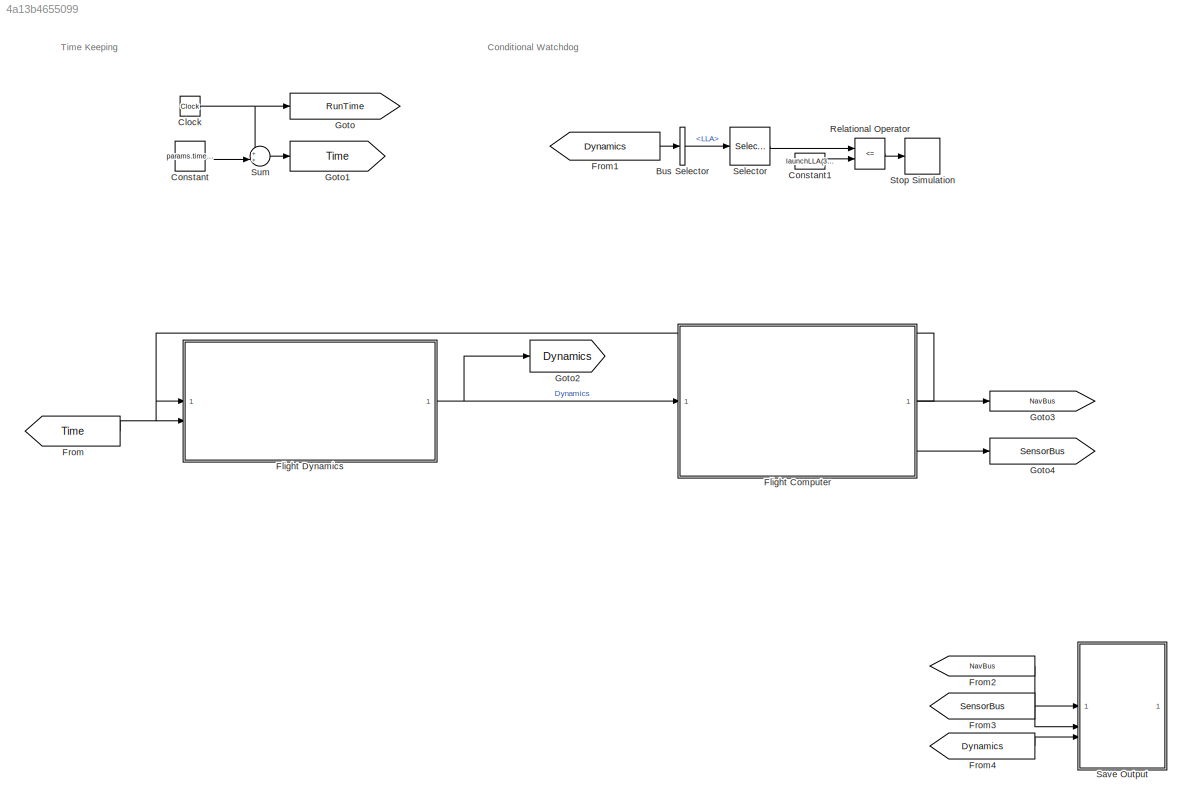
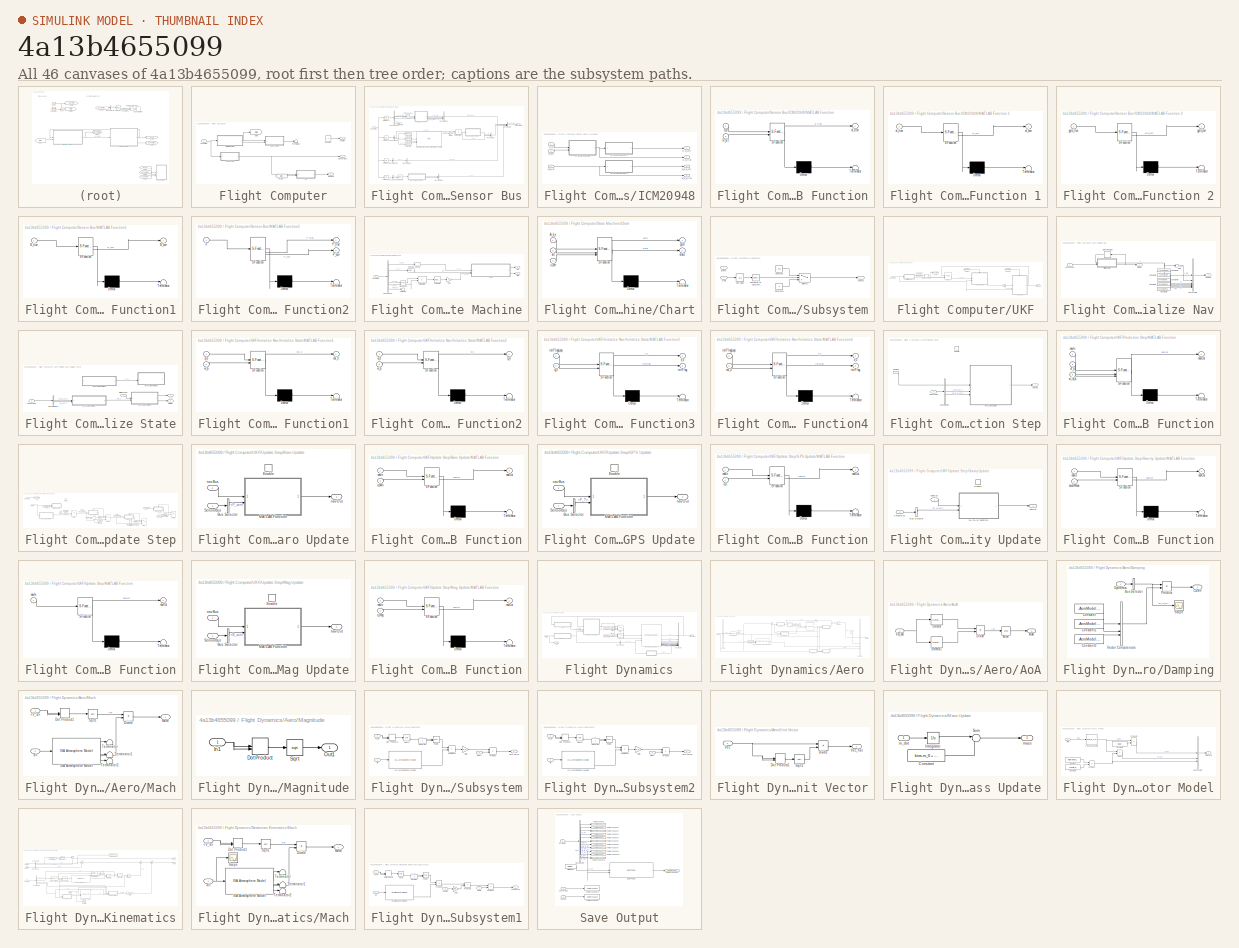
[diagram: thumbnail index - all 46 canvases of the model, root first then tree order]
MODEL slx_4a13b4655099
KIND model
CONFIG AbsTol = auto
CONFIG EnableMultiTasking = off
CONFIG FixedStep = params.time.dt
CONFIG MaxStep = auto
CONFIG MinStep = auto
CONFIG RelTol = 1e-3
CONFIG SampleTimeConstraint = Unconstrained
CONFIG SolverName = FixedStepAuto
CONFIG StartTime = 0.0
CONFIG StopTime = 100
BLOCK [BusSelector] Bus Selector
  OutputSignals = LLA
BLOCK [Clock] Clock
BLOCK [Constant] Constant
  Value = params.time.t0
BLOCK [Constant] Constant1
  Value = launchLLA(3)-4
BLOCK [SubSystem] Flight Computer
BLOCK [Outport] Flight Computer/AbCMD
BLOCK [Constant] Flight Computer/Constant
  Value = 0
BLOCK [Inport] Flight Computer/Dynamics
BLOCK [From] Flight Computer/From
  GotoTag = State
BLOCK [Goto] Flight Computer/Goto
  GotoTag = State
BLOCK [Outport] Flight Computer/NavBus
  Port = 2
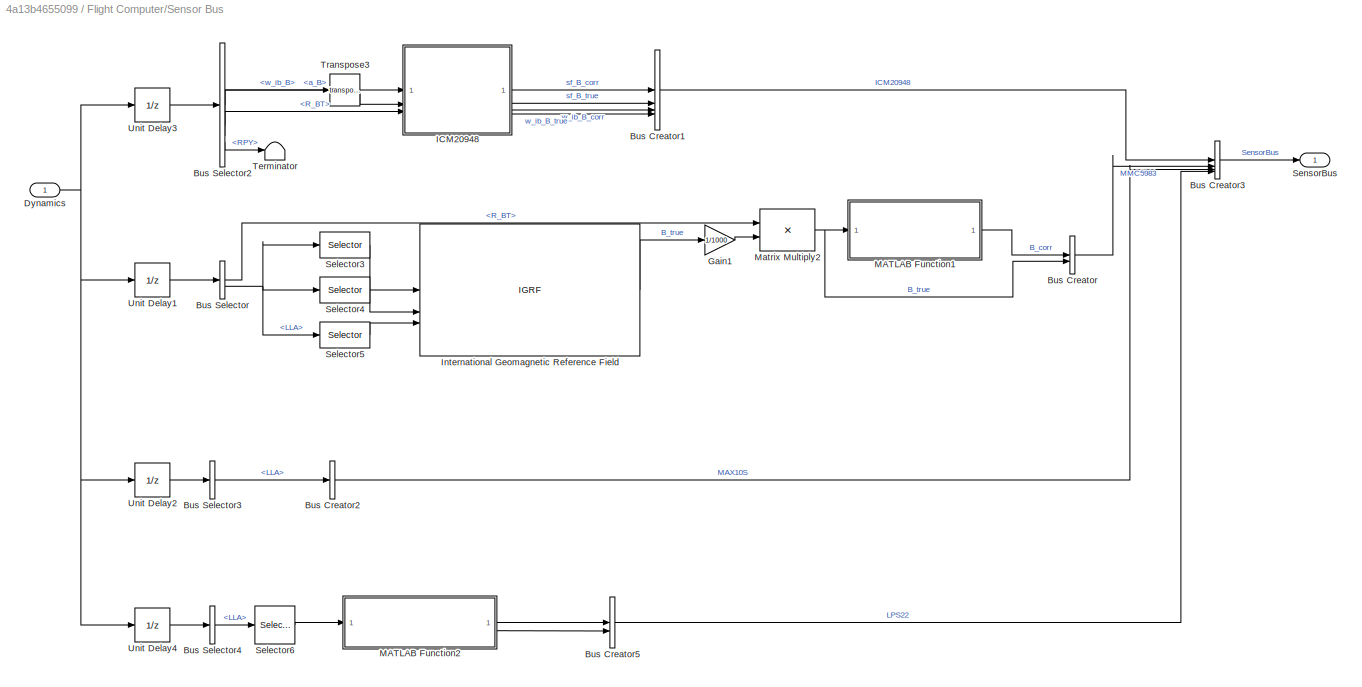
BLOCK [SubSystem] Flight Computer/Sensor Bus
BLOCK [BusCreator] Flight Computer/Sensor Bus/Bus Creator
  DisplayOption = bar
  InheritFromInputs = on
  Inputs = 2
BLOCK [BusCreator] Flight Computer/Sensor Bus/Bus Creator1
  DisplayOption = bar
  InheritFromInputs = on
  Inputs = 4
BLOCK [BusCreator] Flight Computer/Sensor Bus/Bus Creator2
  DisplayOption = bar
  InheritFromInputs = on
  Inputs = 1
BLOCK [BusCreator] Flight Computer/Sensor Bus/Bus Creator3
  DisplayOption = bar
  InheritFromInputs = on
  Inputs = 4
BLOCK [BusCreator] Flight Computer/Sensor Bus/Bus Creator5
  DisplayOption = bar
  InheritFromInputs = on
  Inputs = 2
BLOCK [BusSelector] Flight Computer/Sensor Bus/Bus Selector
  OutputSignals = R_BT,LLA
BLOCK [BusSelector] Flight Computer/Sensor Bus/Bus Selector2
  OutputSignals = a_B,w_ib_B,R_BT,RPY
BLOCK [BusSelector] Flight Computer/Sensor Bus/Bus Selector3
  OutputSignals = LLA
BLOCK [BusSelector] Flight Computer/Sensor Bus/Bus Selector4
  OutputSignals = LLA
BLOCK [Inport] Flight Computer/Sensor Bus/Dynamics
BLOCK [Gain] Flight Computer/Sensor Bus/Gain1
  Gain = 1/1000
BLOCK [SubSystem] Flight Computer/Sensor Bus/ICM20948
BLOCK [Inport] Flight Computer/Sensor Bus/ICM20948/<R_BT>
  Port = 3
BLOCK [Inport] Flight Computer/Sensor Bus/ICM20948/<a_b>
BLOCK [Inport] Flight Computer/Sensor Bus/ICM20948/<w_ib_B>
  Port = 2
BLOCK [SubSystem] Flight Computer/Sensor Bus/ICM20948/MATLAB Function
  ErrorFcn = Stateflow.Translate.translate
  PermitHierarchicalResolution = ExplicitOnly
  SFBlockType = MATLAB Function
  TreatAsAtomicUnit = on
BLOCK [SubSystem] Flight Computer/Sensor Bus/ICM20948/MATLAB Function 1
  ErrorFcn = Stateflow.Translate.translate
  PermitHierarchicalResolution = ExplicitOnly
  SFBlockType = MATLAB Function
  TreatAsAtomicUnit = on
BLOCK [Demux] Flight Computer/Sensor Bus/ICM20948/MATLAB Function 1/ Demux 
  Outputs = 1
BLOCK [S-Function] Flight Computer/Sensor Bus/ICM20948/MATLAB Function 1/ SFunction 
  EnableBusSupport = off
  FunctionName = sf_sfun
  PortCounts = [1 2]
  SFcnIsStateOwnerBlock = off
  SFunctionDeploymentMode = off
  Tag = Stateflow S-Function 10
BLOCK [Terminator] Flight Computer/Sensor Bus/ICM20948/MATLAB Function 1/ Terminator 
BLOCK [Outport] Flight Computer/Sensor Bus/ICM20948/MATLAB Function 1/sf_corr
BLOCK [Inport] Flight Computer/Sensor Bus/ICM20948/MATLAB Function 1/sf_true
BLOCK [SubSystem] Flight Computer/Sensor Bus/ICM20948/MATLAB Function 2
  ErrorFcn = Stateflow.Translate.translate
  PermitHierarchicalResolution = ExplicitOnly
  SFBlockType = MATLAB Function
  TreatAsAtomicUnit = on
BLOCK [Demux] Flight Computer/Sensor Bus/ICM20948/MATLAB Function 2/ Demux 
  Outputs = 1
BLOCK [S-Function] Flight Computer/Sensor Bus/ICM20948/MATLAB Function 2/ SFunction 
  EnableBusSupport = off
  FunctionName = sf_sfun
  PortCounts = [1 2]
  SFcnIsStateOwnerBlock = off
  SFunctionDeploymentMode = off
  Tag = Stateflow S-Function 17
BLOCK [Terminator] Flight Computer/Sensor Bus/ICM20948/MATLAB Function 2/ Terminator 
BLOCK [Outport] Flight Computer/Sensor Bus/ICM20948/MATLAB Function 2/gyro_corr
BLOCK [Inport] Flight Computer/Sensor Bus/ICM20948/MATLAB Function 2/gyro_true
BLOCK [Demux] Flight Computer/Sensor Bus/ICM20948/MATLAB Function/ Demux 
  Outputs = 1
BLOCK [S-Function] Flight Computer/Sensor Bus/ICM20948/MATLAB Function/ SFunction 
  EnableBusSupport = off
  FunctionName = sf_sfun
  PortCounts = [2 2]
  SFcnIsStateOwnerBlock = off
  SFunctionDeploymentMode = off
  Tag = Stateflow S-Function 9
BLOCK [Terminator] Flight Computer/Sensor Bus/ICM20948/MATLAB Function/ Terminator 
BLOCK [Inport] Flight Computer/Sensor Bus/ICM20948/MATLAB Function/R_BT
  Port = 2
BLOCK [Inport] Flight Computer/Sensor Bus/ICM20948/MATLAB Function/a_b
BLOCK [Outport] Flight Computer/Sensor Bus/ICM20948/MATLAB Function/sf_true
BLOCK [Outport] Flight Computer/Sensor Bus/ICM20948/sf_B_corr
BLOCK [Outport] Flight Computer/Sensor Bus/ICM20948/sf_B_true
  Port = 2
BLOCK [Outport] Flight Computer/Sensor Bus/ICM20948/w_ib_B_corr
  Port = 3
BLOCK [Outport] Flight Computer/Sensor Bus/ICM20948/w_ib_B_true
  Port = 4
BLOCK [IGRF] Flight Computer/Sensor Bus/International Geomagnetic Reference Field
  AttributesFormatString = %<generation>
  day = 1
  month = January
  sv_out = off
  time_in = off
BLOCK [SubSystem] Flight Computer/Sensor Bus/MATLAB Function1
  ErrorFcn = Stateflow.Translate.translate
  PermitHierarchicalResolution = ExplicitOnly
  SFBlockType = MATLAB Function
  TreatAsAtomicUnit = on
BLOCK [Demux] Flight Computer/Sensor Bus/MATLAB Function1/ Demux 
  Outputs = 1
BLOCK [S-Function] Flight Computer/Sensor Bus/MATLAB Function1/ SFunction 
  EnableBusSupport = off
  FunctionName = sf_sfun
  PortCounts = [1 2]
  SFcnIsStateOwnerBlock = off
  SFunctionDeploymentMode = off
  Tag = Stateflow S-Function 11
BLOCK [Terminator] Flight Computer/Sensor Bus/MATLAB Function1/ Terminator 
BLOCK [Outport] Flight Computer/Sensor Bus/MATLAB Function1/B_corr
BLOCK [Inport] Flight Computer/Sensor Bus/MATLAB Function1/B_true
BLOCK [SubSystem] Flight Computer/Sensor Bus/MATLAB Function2
  ErrorFcn = Stateflow.Translate.translate
  PermitHierarchicalResolution = ExplicitOnly
  SFBlockType = MATLAB Function
  TreatAsAtomicUnit = on
BLOCK [Demux] Flight Computer/Sensor Bus/MATLAB Function2/ Demux 
  Outputs = 1
BLOCK [S-Function] Flight Computer/Sensor Bus/MATLAB Function2/ SFunction 
  EnableBusSupport = off
  FunctionName = sf_sfun
  Parameters = const
  PortCounts = [1 3]
  SFcnIsStateOwnerBlock = off
  SFunctionDeploymentMode = off
  Tag = Stateflow S-Function 15
BLOCK [Terminator] Flight Computer/Sensor Bus/MATLAB Function2/ Terminator 
BLOCK [Outport] Flight Computer/Sensor Bus/MATLAB Function2/P_corr
  Port = 2
BLOCK [Outport] Flight Computer/Sensor Bus/MATLAB Function2/P_true
BLOCK [Inport] Flight Computer/Sensor Bus/MATLAB Function2/h
BLOCK [Product] Flight Computer/Sensor Bus/Matrix Multiply2
  Multiplication = Matrix(*)
BLOCK [Selector] Flight Computer/Sensor Bus/Selector3
  IndexOptions = Index vector (dialog)
  Indices = 3
  InputPortWidth = 3
  OutputSizes = 1
BLOCK [Selector] Flight Computer/Sensor Bus/Selector4
  IndexOptions = Index vector (dialog)
  Indices = 1
  InputPortWidth = 3
  OutputSizes = 1
BLOCK [Selector] Flight Computer/Sensor Bus/Selector5
  IndexOptions = Index vector (dialog)
  Indices = 1
  InputPortWidth = 3
  OutputSizes = 1
BLOCK [Selector] Flight Computer/Sensor Bus/Selector6
  IndexOptions = Index vector (dialog)
  Indices = 3
  InputPortWidth = 3
  OutputSizes = 1
BLOCK [Outport] Flight Computer/Sensor Bus/SensorBus
BLOCK [Terminator] Flight Computer/Sensor Bus/Terminator
BLOCK [Math] Flight Computer/Sensor Bus/Transpose3
  Operator = transpose
BLOCK [UnitDelay] Flight Computer/Sensor Bus/Unit Delay1
  HasFrameUpgradeWarning = on
  SampleTime = -1
BLOCK [UnitDelay] Flight Computer/Sensor Bus/Unit Delay2
  HasFrameUpgradeWarning = on
  SampleTime = -1
BLOCK [UnitDelay] Flight Computer/Sensor Bus/Unit Delay3
  HasFrameUpgradeWarning = on
  SampleTime = -1
BLOCK [UnitDelay] Flight Computer/Sensor Bus/Unit Delay4
  HasFrameUpgradeWarning = on
  SampleTime = -1
BLOCK [Outport] Flight Computer/SensorBus
  Port = 3
BLOCK [SubSystem] Flight Computer/State Machine
BLOCK [BusSelector] Flight Computer/State Machine/Bus Selector
  OutputSignals = a_B,LLA,V_B,R_BT,mass
BLOCK [SubSystem] Flight Computer/State Machine/Chart
  ErrorFcn = Stateflow.Translate.translate
  PermitHierarchicalResolution = ExplicitOnly
  SFBlockType = Chart
  TreatAsAtomicUnit = on
BLOCK [Demux] Flight Computer/State Machine/Chart/ Demux 
  Outputs = 1
BLOCK [S-Function] Flight Computer/State Machine/Chart/ SFunction 
  EnableBusSupport = off
  FunctionName = sf_sfun
  PortCounts = [3 3]
  SFcnIsStateOwnerBlock = off
  SFunctionDeploymentMode = off
  Tag = Stateflow S-Function 3
BLOCK [Terminator] Flight Computer/State Machine/Chart/ Terminator 
BLOCK [Inport] Flight Computer/State Machine/Chart/A_b_x
BLOCK [Inport] Flight Computer/State Machine/Chart/alt
  Port = 2
BLOCK [Outport] Flight Computer/State Machine/Chart/guid
BLOCK [Outport] Flight Computer/State Machine/Chart/state
  Port = 2
BLOCK [Inport] Flight Computer/State Machine/Chart/v_vert
  Port = 3
BLOCK [Inport] Flight Computer/State Machine/Dynamics
BLOCK [Gain] Flight Computer/State Machine/Gain
  Gain = -1
BLOCK [Outport] Flight Computer/State Machine/Guid
  Port = 2
BLOCK [Product] Flight Computer/State Machine/Matrix Multiply
  Multiplication = Matrix(*)
BLOCK [Selector] Flight Computer/State Machine/Selector
  IndexOptions = Index vector (dialog)
  Indices = 1
  InputPortWidth = 3
  OutputSizes = 1
BLOCK [Selector] Flight Computer/State Machine/Selector1
  IndexOptions = Index vector (dialog)
  Indices = 3
  InputPortWidth = 3
  OutputSizes = 1
BLOCK [Selector] Flight Computer/State Machine/Selector2
  IndexOptions = Index vector (dialog)
  Indices = 3
  InputPortWidth = 3
  OutputSizes = 1
BLOCK [Outport] Flight Computer/State Machine/State
BLOCK [Terminator] Flight Computer/State Machine/Terminator
BLOCK [Math] Flight Computer/State Machine/Transpose
  Operator = transpose
BLOCK [SubSystem] Flight Computer/Subsystem
BLOCK [Outport] Flight Computer/Subsystem/AbCMD
BLOCK [Reference] Flight Computer/Subsystem/Compare To Constant  REF=simulink/Logic and Bit
Operations/Compare
To Constant
  SourceBlock = simulink/Logic and Bit\nOperations/Compare\nTo Constant
  SourceType = Compare To Constant
BLOCK [Constant] Flight Computer/Subsystem/Constant
  Value = 0.75
BLOCK [Constant] Flight Computer/Subsystem/Constant1
  Value = 0
BLOCK [Inport] Flight Computer/Subsystem/Guid
  Port = 2
BLOCK [Inport] Flight Computer/Subsystem/State
BLOCK [Switch] Flight Computer/Subsystem/Switch1
  Criteria = u2 > Threshold
  InputSameDT = off
  SaturateOnIntegerOverflow = off
BLOCK [UnitDelay] Flight Computer/Subsystem/Unit Delay
  HasFrameUpgradeWarning = on
  SampleTime = -1
BLOCK [Terminator] Flight Computer/Terminator
BLOCK [SubSystem] Flight Computer/UKF
  SystemSampleTime = time.navDt
  TreatAsAtomicUnit = on
BLOCK [Reference] Flight Computer/UKF/Compare To Constant  REF=simulink/Logic and Bit
Operations/Compare
To Constant
  SourceBlock = simulink/Logic and Bit\nOperations/Compare\nTo Constant
  SourceType = Compare To Constant
BLOCK [Delay] Flight Computer/UKF/Delay One Step
  DelayLength = 1
  InputPortMap = u0
BLOCK [Delay] Flight Computer/UKF/Delay1
  DelayLength = 1
  InitialCondition = navParams.
  InitialConditionSource = Input port
  InputPortMap = u0,e6,p4
  ShowEnablePort = on
BLOCK [From] Flight Computer/UKF/From
  GotoTag = navInit
BLOCK [From] Flight Computer/UKF/From1
  GotoTag = navInit
BLOCK [Goto] Flight Computer/UKF/Goto
  GotoTag = navInit
BLOCK [SubSystem] Flight Computer/UKF/Initialize Nav
BLOCK [BusCreator] Flight Computer/UKF/Initialize Nav/Bus Creator
  DisplayOption = bar
  InheritFromInputs = on
  Inputs = 7
  NonVirtualBus = on
  OutDataTypeStr = Bus: navBus
BLOCK [Constant] Flight Computer/UKF/Initialize Nav/Constant1
  Value = navParams.W_m
BLOCK [Constant] Flight Computer/UKF/Initialize Nav/Constant2
  Value = navParams.Q
BLOCK [Constant] Flight Computer/UKF/Initialize Nav/Constant3
  Value = navParams.P
BLOCK [Constant] Flight Computer/UKF/Initialize Nav/Constant4
  Value = navParams.P_min
BLOCK [Constant] Flight Computer/UKF/Initialize Nav/Constant5
  Value = navParams.W_c
BLOCK [Delay] Flight Computer/UKF/Initialize Nav/Delay One Step
  DelayLength = 1
  InputPortMap = u0
BLOCK [Gain] Flight Computer/UKF/Initialize Nav/Gain
BLOCK [SubSystem] Flight Computer/UKF/Initialize Nav/Initialize State
BLOCK [BusSelector] Flight Computer/UKF/Initialize Nav/Initialize State/Bus Selector2
  OutputSignals = ICM20948.sf_B_corr,MMC5983.B_corr
BLOCK [SubSystem] Flight Computer/UKF/Initialize Nav/Initialize State/MATLAB Function1
  ErrorFcn = Stateflow.Translate.translate
  PermitHierarchicalResolution = ExplicitOnly
  SFBlockType = MATLAB Function
  TreatAsAtomicUnit = on
BLOCK [Demux] Flight Computer/UKF/Initialize Nav/Initialize State/MATLAB Function1/ Demux 
  Outputs = 1
BLOCK [S-Function] Flight Computer/UKF/Initialize Nav/Initialize State/MATLAB Function1/ SFunction 
  EnableBusSupport = off
  FunctionName = sf_sfun
  PortCounts = [2 2]
  SFcnIsStateOwnerBlock = off
  SFunctionDeploymentMode = off
  Tag = Stateflow S-Function 1
BLOCK [Terminator] Flight Computer/UKF/Initialize Nav/Initialize State/MATLAB Function1/ Terminator 
BLOCK [Inport] Flight Computer/UKF/Initialize Nav/Initialize State/MATLAB Function1/a_b
BLOCK [Outport] Flight Computer/UKF/Initialize Nav/Initialize State/MATLAB Function1/eul_0
BLOCK [Inport] Flight Computer/UKF/Initialize Nav/Initialize State/MATLAB Function1/m_b
  Port = 2
BLOCK [SubSystem] Flight Computer/UKF/Initialize Nav/Initialize State/MATLAB Function2
  Commented = on
  ErrorFcn = Stateflow.Translate.translate
  PermitHierarchicalResolution = ExplicitOnly
  SFBlockType = MATLAB Function
  TreatAsAtomicUnit = on
BLOCK [Demux] Flight Computer/UKF/Initialize Nav/Initialize State/MATLAB Function2/ Demux 
  Outputs = 1
BLOCK [S-Function] Flight Computer/UKF/Initialize Nav/Initialize State/MATLAB Function2/ SFunction 
  EnableBusSupport = off
  FunctionName = sf_sfun
  PortCounts = [2 2]
  SFcnIsStateOwnerBlock = off
  SFunctionDeploymentMode = off
  Tag = Stateflow S-Function 21
BLOCK [Terminator] Flight Computer/UKF/Initialize Nav/Initialize State/MATLAB Function2/ Terminator 
BLOCK [Inport] Flight Computer/UKF/Initialize Nav/Initialize State/MATLAB Function2/a_b
BLOCK [Inport] Flight Computer/UKF/Initialize Nav/Initialize State/MATLAB Function2/m_b
  Port = 2
BLOCK [Outport] Flight Computer/UKF/Initialize Nav/Initialize State/MATLAB Function2/q_0
BLOCK [SubSystem] Flight Computer/UKF/Initialize Nav/Initialize State/MATLAB Function3
  Commented = on
  ErrorFcn = Stateflow.Translate.translate
  PermitHierarchicalResolution = ExplicitOnly
  SFBlockType = MATLAB Function
  TreatAsAtomicUnit = on
BLOCK [Demux] Flight Computer/UKF/Initialize Nav/Initialize State/MATLAB Function3/ Demux 
  Outputs = 1
BLOCK [S-Function] Flight Computer/UKF/Initialize Nav/Initialize State/MATLAB Function3/ SFunction 
  EnableBusSupport = off
  FunctionName = sf_sfun
  Parameters = navInds,navParams
  PortCounts = [2 3]
  SFcnIsStateOwnerBlock = off
  SFunctionDeploymentMode = off
  Tag = Stateflow S-Function 22
BLOCK [Terminator] Flight Computer/UKF/Initialize Nav/Initialize State/MATLAB Function3/ Terminator 
BLOCK [Outport] Flight Computer/UKF/Initialize Nav/Initialize State/MATLAB Function3/initFlag
  Port = 2
BLOCK [Inport] Flight Computer/UKF/Initialize Nav/Initialize State/MATLAB Function3/initFlagLoop
BLOCK [Inport] Flight Computer/UKF/Initialize Nav/Initialize State/MATLAB Function3/q_0
  Port = 2
BLOCK [Outport] Flight Computer/UKF/Initialize Nav/Initialize State/MATLAB Function3/x_0
BLOCK [SubSystem] Flight Computer/UKF/Initialize Nav/Initialize State/MATLAB Function4
  ErrorFcn = Stateflow.Translate.translate
  PermitHierarchicalResolution = ExplicitOnly
  SFBlockType = MATLAB Function
  TreatAsAtomicUnit = on
BLOCK [Demux] Flight Computer/UKF/Initialize Nav/Initialize State/MATLAB Function4/ Demux 
  Outputs = 1
BLOCK [S-Function] Flight Computer/UKF/Initialize Nav/Initialize State/MATLAB Function4/ SFunction 
  EnableBusSupport = off
  FunctionName = sf_sfun
  Parameters = navInds,navParams
  PortCounts = [2 3]
  SFcnIsStateOwnerBlock = off
  SFunctionDeploymentMode = off
  Tag = Stateflow S-Function 4
BLOCK [Terminator] Flight Computer/UKF/Initialize Nav/Initialize State/MATLAB Function4/ Terminator 
BLOCK [Inport] Flight Computer/UKF/Initialize Nav/Initialize State/MATLAB Function4/eul_0
  Port = 2
BLOCK [Outport] Flight Computer/UKF/Initialize Nav/Initialize State/MATLAB Function4/initFlag
  Port = 2
BLOCK [Inport] Flight Computer/UKF/Initialize Nav/Initialize State/MATLAB Function4/initFlagLoop
BLOCK [Outport] Flight Computer/UKF/Initialize Nav/Initialize State/MATLAB Function4/x_0
BLOCK [Inport] Flight Computer/UKF/Initialize Nav/Initialize State/SensorBus
  Port = 2
BLOCK [Outport] Flight Computer/UKF/Initialize Nav/Initialize State/initFlag
  Port = 2
BLOCK [Inport] Flight Computer/UKF/Initialize Nav/Initialize State/initFlagLoop
BLOCK [Outport] Flight Computer/UKF/Initialize Nav/Initialize State/x_0
BLOCK [Outport] Flight Computer/UKF/Initialize Nav/NavBus
  OutDataTypeStr = Bus: navBus
  Port = 2
BLOCK [Inport] Flight Computer/UKF/Initialize Nav/SensorBus
BLOCK [Outport] Flight Computer/UKF/Initialize Nav/initFlag
BLOCK [Outport] Flight Computer/UKF/NavBus
  OutDataTypeStr = Bus: navBus
BLOCK [SubSystem] Flight Computer/UKF/Prediction Step
BLOCK [BusSelector] Flight Computer/UKF/Prediction Step/Bus Selector
  OutputSignals = ICM20948.sf_B_corr,ICM20948.w_ib_B_corr
BLOCK [EnablePort] Flight Computer/UKF/Prediction Step/Enable
BLOCK [SubSystem] Flight Computer/UKF/Prediction Step/MATLAB Function
  ErrorFcn = Stateflow.Translate.translate
  PermitHierarchicalResolution = ExplicitOnly
  SFBlockType = MATLAB Function
  TreatAsAtomicUnit = on
BLOCK [Demux] Flight Computer/UKF/Prediction Step/MATLAB Function/ Demux 
  Outputs = 1
BLOCK [S-Function] Flight Computer/UKF/Prediction Step/MATLAB Function/ SFunction 
  EnableBusSupport = off
  FunctionName = sf_sfun
  Parameters = navInds,navParams,time
  PortCounts = [3 2]
  SFcnIsStateOwnerBlock = off
  SFunctionDeploymentMode = off
  Tag = Stateflow S-Function 2
BLOCK [Terminator] Flight Computer/UKF/Prediction Step/MATLAB Function/ Terminator 
BLOCK [Inport] Flight Computer/UKF/Prediction Step/MATLAB Function/navIn
BLOCK [Outport] Flight Computer/UKF/Prediction Step/MATLAB Function/navOut
BLOCK [Inport] Flight Computer/UKF/Prediction Step/MATLAB Function/sf_b
  Port = 2
BLOCK [Inport] Flight Computer/UKF/Prediction Step/MATLAB Function/w_ib_b
  Port = 3
BLOCK [Inport] Flight Computer/UKF/Prediction Step/NavBus
BLOCK [Inport] Flight Computer/UKF/Prediction Step/SensorBus
  Port = 2
BLOCK [Outport] Flight Computer/UKF/Prediction Step/navOut
BLOCK [Inport] Flight Computer/UKF/SensorBus
BLOCK [Inport] Flight Computer/UKF/State
  Port = 2
BLOCK [SubSystem] Flight Computer/UKF/Update Step
BLOCK [SubSystem] Flight Computer/UKF/Update Step/Baro Update
  Commented = on
  TreatAsAtomicUnit = on
BLOCK [BusSelector] Flight Computer/UKF/Update Step/Baro Update/Bus Selector
  OutputSignals = LPS22.P_corr
BLOCK [EnablePort] Flight Computer/UKF/Update Step/Baro Update/Enable
BLOCK [SubSystem] Flight Computer/UKF/Update Step/Baro Update/MATLAB Function
  ErrorFcn = Stateflow.Translate.translate
  PermitHierarchicalResolution = ExplicitOnly
  SFBlockType = MATLAB Function
  TreatAsAtomicUnit = on
BLOCK [Demux] Flight Computer/UKF/Update Step/Baro Update/MATLAB Function/ Demux 
  Outputs = 1
BLOCK [S-Function] Flight Computer/UKF/Update Step/Baro Update/MATLAB Function/ SFunction 
  EnableBusSupport = off
  FunctionName = sf_sfun
  Parameters = const,kfConsts,kfInds
  PortCounts = [2 2]
  SFcnIsStateOwnerBlock = off
  SFunctionDeploymentMode = off
  Tag = Stateflow S-Function 16
BLOCK [Terminator] Flight Computer/UKF/Update Step/Baro Update/MATLAB Function/ Terminator 
BLOCK [Inport] Flight Computer/UKF/Update Step/Baro Update/MATLAB Function/navIn
BLOCK [Outport] Flight Computer/UKF/Update Step/Baro Update/MATLAB Function/navOut
BLOCK [Inport] Flight Computer/UKF/Update Step/Baro Update/MATLAB Function/u_baro
  Port = 2
BLOCK [Inport] Flight Computer/UKF/Update Step/Baro Update/SensorBus
BLOCK [Inport] Flight Computer/UKF/Update Step/Baro Update/navBus
  Port = 2
BLOCK [Outport] Flight Computer/UKF/Update Step/Baro Update/navOut
BLOCK [Reference] Flight Computer/UKF/Update Step/Compare To Constant  REF=simulink/Logic and Bit
Operations/Compare
To Constant
  SourceBlock = simulink/Logic and Bit\nOperations/Compare\nTo Constant
  SourceType = Compare To Constant
BLOCK [Reference] Flight Computer/UKF/Update Step/Compare To Constant1  REF=simulink/Logic and Bit
Operations/Compare
To Constant
  Commented = on
  SourceBlock = simulink/Logic and Bit\nOperations/Compare\nTo Constant
  SourceType = Compare To Constant
BLOCK [Reference] Flight Computer/UKF/Update Step/Compare To Constant2  REF=simulink/Logic and Bit
Operations/Compare
To Constant
  Commented = on
  SourceBlock = simulink/Logic and Bit\nOperations/Compare\nTo Constant
  SourceType = Compare To Constant
BLOCK [Reference] Flight Computer/UKF/Update Step/Compare To Constant3  REF=simulink/Logic and Bit
Operations/Compare
To Constant
  Commented = on
  SourceBlock = simulink/Logic and Bit\nOperations/Compare\nTo Constant
  SourceType = Compare To Constant
BLOCK [DiscretePulseGenerator] Flight Computer/UKF/Update Step/Discrete Pulse Generator
  Commented = on
  Period = 5
  SampleTime = time.navDt
BLOCK [DiscretePulseGenerator] Flight Computer/UKF/Update Step/Discrete Pulse Generator1
  Commented = on
  Period = 5
  SampleTime = time.navDt
BLOCK [DiscretePulseGenerator] Flight Computer/UKF/Update Step/Discrete Pulse Generator2
  Amplitude = 0
  Commented = on
  Period = 5
  SampleTime = time.navDt
BLOCK [EnablePort] Flight Computer/UKF/Update Step/Enable
BLOCK [From] Flight Computer/UKF/Update Step/From
  Commented = on
  GotoTag = SensorBus
BLOCK [From] Flight Computer/UKF/Update Step/From1
  Commented = on
  GotoTag = SensorBus
BLOCK [From] Flight Computer/UKF/Update Step/From2
  Commented = on
  GotoTag = SensorBus
BLOCK [From] Flight Computer/UKF/Update Step/From3
  Commented = on
  GotoTag = SensorBus
BLOCK [SubSystem] Flight Computer/UKF/Update Step/GPS Update
  Commented = on
  TreatAsAtomicUnit = on
BLOCK [BusSelector] Flight Computer/UKF/Update Step/GPS Update/Bus Selector
  OutputSignals = MAX10S.P_T
BLOCK [EnablePort] Flight Computer/UKF/Update Step/GPS Update/Enable
BLOCK [SubSystem] Flight Computer/UKF/Update Step/GPS Update/MATLAB Function
  ErrorFcn = Stateflow.Translate.translate
  PermitHierarchicalResolution = ExplicitOnly
  SFBlockType = MATLAB Function
  TreatAsAtomicUnit = on
BLOCK [Demux] Flight Computer/UKF/Update Step/GPS Update/MATLAB Function/ Demux 
  Outputs = 1
BLOCK [S-Function] Flight Computer/UKF/Update Step/GPS Update/MATLAB Function/ SFunction 
  EnableBusSupport = off
  FunctionName = sf_sfun
  Parameters = kfConsts,kfErrInds,kfInds,time
  PortCounts = [2 2]
  SFcnIsStateOwnerBlock = off
  SFunctionDeploymentMode = off
  Tag = Stateflow S-Function 12
BLOCK [Terminator] Flight Computer/UKF/Update Step/GPS Update/MATLAB Function/ Terminator 
BLOCK [Inport] Flight Computer/UKF/Update Step/GPS Update/MATLAB Function/navIn
BLOCK [Outport] Flight Computer/UKF/Update Step/GPS Update/MATLAB Function/navOut
BLOCK [Inport] Flight Computer/UKF/Update Step/GPS Update/MATLAB Function/u_k
  Port = 2
BLOCK [Inport] Flight Computer/UKF/Update Step/GPS Update/SensorBus
BLOCK [Inport] Flight Computer/UKF/Update Step/GPS Update/navBus
  Port = 2
BLOCK [Outport] Flight Computer/UKF/Update Step/GPS Update/navOut
BLOCK [Goto] Flight Computer/UKF/Update Step/Goto
  GotoTag = SensorBus
BLOCK [SubSystem] Flight Computer/UKF/Update Step/Gravity Update
  Commented = on
BLOCK [BusSelector] Flight Computer/UKF/Update Step/Gravity Update/Bus Selector
  OutputSignals = ICM20948.sf_B_corr
BLOCK [EnablePort] Flight Computer/UKF/Update Step/Gravity Update/Enable
BLOCK [SubSystem] Flight Computer/UKF/Update Step/Gravity Update/MATLAB Function
  ErrorFcn = Stateflow.Translate.translate
  PermitHierarchicalResolution = ExplicitOnly
  SFBlockType = MATLAB Function
  TreatAsAtomicUnit = on
BLOCK [Demux] Flight Computer/UKF/Update Step/Gravity Update/MATLAB Function/ Demux 
  Outputs = 1
BLOCK [S-Function] Flight Computer/UKF/Update Step/Gravity Update/MATLAB Function/ SFunction 
  EnableBusSupport = off
  FunctionName = sf_sfun
  Parameters = kfConsts,kfErrInds,kfInds
  PortCounts = [2 2]
  SFcnIsStateOwnerBlock = off
  SFunctionDeploymentMode = off
  Tag = Stateflow S-Function 24
BLOCK [Terminator] Flight Computer/UKF/Update Step/Gravity Update/MATLAB Function/ Terminator 
BLOCK [Inport] Flight Computer/UKF/Update Step/Gravity Update/MATLAB Function/accelMeas
  Port = 2
BLOCK [Inport] Flight Computer/UKF/Update Step/Gravity Update/MATLAB Function/navIn
BLOCK [Outport] Flight Computer/UKF/Update Step/Gravity Update/MATLAB Function/navOut
BLOCK [Inport] Flight Computer/UKF/Update Step/Gravity Update/SensorBus
  Port = 2
BLOCK [Inport] Flight Computer/UKF/Update Step/Gravity Update/navBus
BLOCK [Outport] Flight Computer/UKF/Update Step/Gravity Update/navOut
BLOCK [SubSystem] Flight Computer/UKF/Update Step/MATLAB Function
  ErrorFcn = Stateflow.Translate.translate
  PermitHierarchicalResolution = ExplicitOnly
  SFBlockType = MATLAB Function
  TreatAsAtomicUnit = on
BLOCK [Demux] Flight Computer/UKF/Update Step/MATLAB Function/ Demux 
  Outputs = 1
BLOCK [S-Function] Flight Computer/UKF/Update Step/MATLAB Function/ SFunction 
  EnableBusSupport = off
  FunctionName = sf_sfun
  PortCounts = [1 2]
  SFcnIsStateOwnerBlock = off
  SFunctionDeploymentMode = off
  Tag = Stateflow S-Function 25
BLOCK [Terminator] Flight Computer/UKF/Update Step/MATLAB Function/ Terminator 
BLOCK [Inport] Flight Computer/UKF/Update Step/MATLAB Function/navIn
BLOCK [Outport] Flight Computer/UKF/Update Step/MATLAB Function/navOut
BLOCK [SubSystem] Flight Computer/UKF/Update Step/Mag Update
  Commented = on
  TreatAsAtomicUnit = on
BLOCK [BusSelector] Flight Computer/UKF/Update Step/Mag Update/Bus Selector
  OutputSignals = MMC5983.B_corr
BLOCK [EnablePort] Flight Computer/UKF/Update Step/Mag Update/Enable
BLOCK [SubSystem] Flight Computer/UKF/Update Step/Mag Update/MATLAB Function
  ErrorFcn = Stateflow.Translate.translate
  PermitHierarchicalResolution = ExplicitOnly
  SFBlockType = MATLAB Function
  TreatAsAtomicUnit = on
BLOCK [Demux] Flight Computer/UKF/Update Step/Mag Update/MATLAB Function/ Demux 
  Outputs = 1
BLOCK [S-Function] Flight Computer/UKF/Update Step/Mag Update/MATLAB Function/ SFunction 
  EnableBusSupport = off
  FunctionName = sf_sfun
  Parameters = kfConsts,kfErrInds,kfInds
  PortCounts = [2 2]
  SFcnIsStateOwnerBlock = off
  SFunctionDeploymentMode = off
  Tag = Stateflow S-Function 14
BLOCK [Terminator] Flight Computer/UKF/Update Step/Mag Update/MATLAB Function/ Terminator 
BLOCK [Inport] Flight Computer/UKF/Update Step/Mag Update/MATLAB Function/navIn
BLOCK [Outport] Flight Computer/UKF/Update Step/Mag Update/MATLAB Function/navOut
BLOCK [Inport] Flight Computer/UKF/Update Step/Mag Update/MATLAB Function/u_mag
  Port = 2
BLOCK [Inport] Flight Computer/UKF/Update Step/Mag Update/SensorBus
BLOCK [Inport] Flight Computer/UKF/Update Step/Mag Update/navBus
  Port = 2
BLOCK [Outport] Flight Computer/UKF/Update Step/Mag Update/navOut
BLOCK [Inport] Flight Computer/UKF/Update Step/SensorBus
  Port = 3
BLOCK [Inport] Flight Computer/UKF/Update Step/State
  Port = 2
BLOCK [Switch] Flight Computer/UKF/Update Step/Switch
  Criteria = u2 > Threshold
  InputSameDT = off
  SaturateOnIntegerOverflow = off
BLOCK [Switch] Flight Computer/UKF/Update Step/Switch1
  Commented = on
  Criteria = u2 > Threshold
  InputSameDT = off
  SaturateOnIntegerOverflow = off
BLOCK [Switch] Flight Computer/UKF/Update Step/Switch2
  Commented = on
  Criteria = u2 > Threshold
  InputSameDT = off
  SaturateOnIntegerOverflow = off
BLOCK [Switch] Flight Computer/UKF/Update Step/Switch3
  Commented = on
  Criteria = u2 > Threshold
  InputSameDT = off
  SaturateOnIntegerOverflow = off
BLOCK [Inport] Flight Computer/UKF/Update Step/navBus
BLOCK [Outport] Flight Computer/UKF/Update Step/navOut
BLOCK [SubSystem] Flight Dynamics
BLOCK [Reference] Flight Dynamics/6DOF ECEF (Quaternion)  REF=aerolib6dof2/6DOF ECEF (Quaternion)
  SourceBlock = aerolib6dof2/6DOF ECEF (Quaternion)
  SourceType = 6DOF EoM (ECEF)
BLOCK [SubSystem] Flight Dynamics/Aero
BLOCK [Lookup_n-D] Flight Dynamics/Aero/2-D Lookup Table1
  ApplyAccurateEfficientRounding = on
  BreakpointsForDimension1 = AeroModel.AoAs
  BreakpointsForDimension2 = AeroModel.MachNumbers
  ExtrapMethod = Clip
  InputPortMap = u0,u1
  InternalRulePriority = Speed
  RndMeth = Simplest
  Table = AeroModel.CdGrid
  UseLastTableValue = on
BLOCK [Abs] Flight Dynamics/Aero/Abs
  SaturateOnIntegerOverflow = off
BLOCK [Outport] Flight Dynamics/Aero/AeroBus
BLOCK [SubSystem] Flight Dynamics/Aero/AoA
BLOCK [Outport] Flight Dynamics/Aero/AoA/AoA
BLOCK [Trigonometry] Flight Dynamics/Aero/AoA/Atan
  Operator = atan
BLOCK [Product] Flight Dynamics/Aero/AoA/Divide
  Inputs = */
BLOCK [Selector] Flight Dynamics/Aero/AoA/Selector
  IndexOptions = Index vector (dialog)
  Indices = 3
  InputPortWidth = 3
  OutputSizes = 1
BLOCK [Selector] Flight Dynamics/Aero/AoA/Selector1
  IndexOptions = Index vector (dialog)
  Indices = 1
  InputPortWidth = 3
  OutputSizes = 1
BLOCK [Inport] Flight Dynamics/Aero/AoA/Vec_hat
BLOCK [BusCreator] Flight Dynamics/Aero/Bus Creator1
  DisplayOption = bar
  InheritFromInputs = on
  Inputs = 4
BLOCK [BusSelector] Flight Dynamics/Aero/Bus Selector
  OutputSignals = V_B,P_E,R_BT
BLOCK [Constant] Flight Dynamics/Aero/Constant
  Value = 0
BLOCK [SubSystem] Flight Dynamics/Aero/Damping
BLOCK [BusSelector] Flight Dynamics/Aero/Damping/Bus Selector
  OutputSignals = w_ib_B
BLOCK [Outport] Flight Dynamics/Aero/Damping/Coeff
BLOCK [Constant] Flight Dynamics/Aero/Damping/Constant
  Value = -AeroModel.damping.Cd_x*kins.S*kins.x_cp
BLOCK [Constant] Flight Dynamics/Aero/Damping/Constant1
  Value = -AeroModel.damping.Cd_y*kins.S*kins.x_cp
BLOCK [Constant] Flight Dynamics/Aero/Damping/Constant2
  Value = -AeroModel.damping.Cd_z*kins.S*kins.x_cp
BLOCK [Inport] Flight Dynamics/Aero/Damping/Dynamics
BLOCK [Product] Flight Dynamics/Aero/Damping/Product
BLOCK [Scope] Flight Dynamics/Aero/Damping/Scope
  ActiveDisplayYMaximum = 0.06187
  ActiveDisplayYMinimum = -0.11753
  DataLoggingVariableName = ScopeData3
  Floating = off
  GraphicalSettings = {"GraphicalSettings":{"LegacySettings":true,"Style":{"Style":{"AxesColor":"[0 0 0]","ChannelNames":[""],"ColorOrder":"[1 0.909803921568627 0.392156862745098;0.149019607843137 0.549019607843137 0.866666666666667;0.96078431372549 0.466666666666667 0.16078431372549;0.286274509803922 0.858823529411765 0.250980392156863;0.752941176470588 0.36078431372549 0.984313725490196;0.423529411764706 0.9568627450...<+438ch>
  MultipleDisplayCache = [{"MaxYLimMag":0.11753,"MaxYLimReal":0.06187,"MinYLimMag":0,"MinYLimReal":-0.11753,"PlotAsMagnitudePhase":false,"ShowGrid":true,"ShowLegend":false,"Title":"%<SignalLabel>","YLabel":""}]
  NumInputPorts = 1
  WasSavedAsWebScope = on
BLOCK [Concatenate] Flight Dynamics/Aero/Damping/Vector Concatenate
  NumInputs = 3
BLOCK [Reference] Flight Dynamics/Aero/Dryden Wind Turbulence Model (Discrete (+q +r))  REF=aerolibwind2/Dryden Wind Turbulence Model 
(Continuous (+q -r))
  LibrarySourceBlock = aerolibwind2/Dryden Wind Turbulence Model \n(Discrete (+q +r))
  SourceBlock = aerolibwind2/Dryden Wind Turbulence Model \n(Continuous (+q -r))
  SourceType = Wind Turbulence Model
BLOCK [Inport] Flight Dynamics/Aero/Dynamics
BLOCK [ECEF2LLA] Flight Dynamics/Aero/ECEF Position to LLA
BLOCK [Gain] Flight Dynamics/Aero/Gain
  Gain = -1
BLOCK [SubSystem] Flight Dynamics/Aero/Mach
BLOCK [Inport] Flight Dynamics/Aero/Mach/<V_B>
BLOCK [Product] Flight Dynamics/Aero/Mach/Divide
  Inputs = */
BLOCK [DotProduct] Flight Dynamics/Aero/Mach/Dot Product1
  OutDataTypeStr = Inherit: Inherit via internal rule
BLOCK [Reference] Flight Dynamics/Aero/Mach/ISA Atmosphere Model  REF=aerolibatmos2/ISA Atmosphere Model
  SourceBlock = aerolibatmos2/ISA Atmosphere Model
  SourceType = International Standard Atmosphere Model
BLOCK [Outport] Flight Dynamics/Aero/Mach/Mach
BLOCK [Sqrt] Flight Dynamics/Aero/Mach/Sqrt1
BLOCK [Terminator] Flight Dynamics/Aero/Mach/Terminator
BLOCK [Terminator] Flight Dynamics/Aero/Mach/Terminator1
BLOCK [Terminator] Flight Dynamics/Aero/Mach/Terminator2
BLOCK [Inport] Flight Dynamics/Aero/Mach/alt
  Port = 2
BLOCK [SubSystem] Flight Dynamics/Aero/Magnitude
BLOCK [DotProduct] Flight Dynamics/Aero/Magnitude/Dot Product
  OutDataTypeStr = Inherit: Inherit via internal rule
BLOCK [Inport] Flight Dynamics/Aero/Magnitude/In1
BLOCK [Outport] Flight Dynamics/Aero/Magnitude/Out1
BLOCK [Sqrt] Flight Dynamics/Aero/Magnitude/Sqrt
BLOCK [Product] Flight Dynamics/Aero/Product1
BLOCK [Reference] Flight Dynamics/Aero/Radians to Degrees  REF=simulink_extras/Transformations/Radians
to Degrees
  SourceBlock = simulink_extras/Transformations/Radians\nto Degrees
  SourceType = RadiansToDegrees
BLOCK [SubSystem] Flight Dynamics/Aero/Subsystem
BLOCK [Inport] Flight Dynamics/Aero/Subsystem/<V_B>
BLOCK [Outport] Flight Dynamics/Aero/Subsystem/Aero Force
BLOCK [Inport] Flight Dynamics/Aero/Subsystem/Coeff
  Port = 2
BLOCK [Constant] Flight Dynamics/Aero/Subsystem/Constant
  Value = 2
BLOCK [DotProduct] Flight Dynamics/Aero/Subsystem/Dot Product1
  OutDataTypeStr = Inherit: Inherit via internal rule
BLOCK [Gain] Flight Dynamics/Aero/Subsystem/Gain
  Gain = 1/2 * kins.S
BLOCK [Reference] Flight Dynamics/Aero/Subsystem/ISA Atmosphere Model  REF=aerolibatmos2/ISA Atmosphere Model
  SourceBlock = aerolibatmos2/ISA Atmosphere Model
  SourceType = International Standard Atmosphere Model
BLOCK [Math] Flight Dynamics/Aero/Subsystem/Power
  Operator = pow
BLOCK [Product] Flight Dynamics/Aero/Subsystem/Product
BLOCK [Product] Flight Dynamics/Aero/Subsystem/Product1
BLOCK [Sqrt] Flight Dynamics/Aero/Subsystem/Sqrt1
BLOCK [Inport] Flight Dynamics/Aero/Subsystem/alt
  Port = 3
BLOCK [SubSystem] Flight Dynamics/Aero/Subsystem2
BLOCK [Inport] Flight Dynamics/Aero/Subsystem2/<V_B>
BLOCK [Outport] Flight Dynamics/Aero/Subsystem2/Aero Force
BLOCK [Inport] Flight Dynamics/Aero/Subsystem2/Coeff
  Port = 2
BLOCK [Constant] Flight Dynamics/Aero/Subsystem2/Constant
  Value = 2
BLOCK [DotProduct] Flight Dynamics/Aero/Subsystem2/Dot Product1
  OutDataTypeStr = Inherit: Inherit via internal rule
BLOCK [Gain] Flight Dynamics/Aero/Subsystem2/Gain
  Gain = 1/2 * kins.S
BLOCK [Reference] Flight Dynamics/Aero/Subsystem2/ISA Atmosphere Model  REF=aerolibatmos2/ISA Atmosphere Model
  SourceBlock = aerolibatmos2/ISA Atmosphere Model
  SourceType = International Standard Atmosphere Model
BLOCK [Math] Flight Dynamics/Aero/Subsystem2/Power
  Operator = pow
BLOCK [Product] Flight Dynamics/Aero/Subsystem2/Product
BLOCK [Product] Flight Dynamics/Aero/Subsystem2/Product1
BLOCK [Sqrt] Flight Dynamics/Aero/Subsystem2/Sqrt1
BLOCK [Inport] Flight Dynamics/Aero/Subsystem2/alt
  Port = 3
BLOCK [Sum] Flight Dynamics/Aero/Sum
  Inputs = |++
BLOCK [Terminator] Flight Dynamics/Aero/Terminator
BLOCK [SubSystem] Flight Dynamics/Aero/Unit Vector
BLOCK [Product] Flight Dynamics/Aero/Unit Vector/Divide
  Inputs = */
BLOCK [DotProduct] Flight Dynamics/Aero/Unit Vector/Dot Product1
  OutDataTypeStr = Inherit: Inherit via internal rule
BLOCK [Sqrt] Flight Dynamics/Aero/Unit Vector/Sqrt1
BLOCK [Inport] Flight Dynamics/Aero/Unit Vector/Vec
BLOCK [Outport] Flight Dynamics/Aero/Unit Vector/Vec_hat
BLOCK [BusCreator] Flight Dynamics/Bus Creator
  DisplayOption = bar
  InheritFromInputs = on
  Inputs = 14
BLOCK [BusSelector] Flight Dynamics/Bus Selector
  OutputSignals = m_dot
BLOCK [Constant] Flight Dynamics/Constant
  Value = zeros(3,1)
BLOCK [Constant] Flight Dynamics/Constant1
  Value = zeros(3,1)
BLOCK [Outport] Flight Dynamics/Dynamics
BLOCK [From] Flight Dynamics/From
  GotoTag = Time
BLOCK [From] Flight Dynamics/From1
  GotoTag = Time
BLOCK [Goto] Flight Dynamics/Goto
  GotoTag = Time
BLOCK [SubSystem] Flight Dynamics/Mass Update
BLOCK [Constant] Flight Dynamics/Mass Update/Constant
  Value = kins.m_0 + MotorModel.emptyWt + MotorModel.propWt
BLOCK [Integrator] Flight Dynamics/Mass Update/Integrator
BLOCK [Sum] Flight Dynamics/Mass Update/Sum
  Inputs = |-+
BLOCK [Inport] Flight Dynamics/Mass Update/m_dot
BLOCK [Outport] Flight Dynamics/Mass Update/mass
BLOCK [SubSystem] Flight Dynamics/Motor Model
BLOCK [Lookup_n-D] Flight Dynamics/Motor Model/2-D Lookup Table
  ApplyFullPrecisionForLinearInterpolation = on
  BreakpointsForDimension1 = MotorModel.timePts
  BreakpointsForDimension2 = [1:3]
  ExtrapMethod = Clip
  InputPortMap = u0
  InternalRulePriority = Speed
  NumberOfTableDimensions = 1
  RndMeth = Simplest
  Table = MotorModel.thrustPts
BLOCK [BusCreator] Flight Dynamics/Motor Model/Bus Creator
  DisplayOption = bar
  InheritFromInputs = on
  Inputs = 3
BLOCK [Constant] Flight Dynamics/Motor Model/Constant
  Value = MotorModel.Isp
BLOCK [Constant] Flight Dynamics/Motor Model/Constant1
  Value = const.g_e
BLOCK [Constant] Flight Dynamics/Motor Model/Constant2
  Value = [1;0;0]
BLOCK [Product] Flight Dynamics/Motor Model/Divide
  Inputs = */
BLOCK [Outport] Flight Dynamics/Motor Model/MotorBus
BLOCK [Product] Flight Dynamics/Motor Model/Product
BLOCK [Product] Flight Dynamics/Motor Model/Product1
BLOCK [Inport] Flight Dynamics/Motor Model/Time
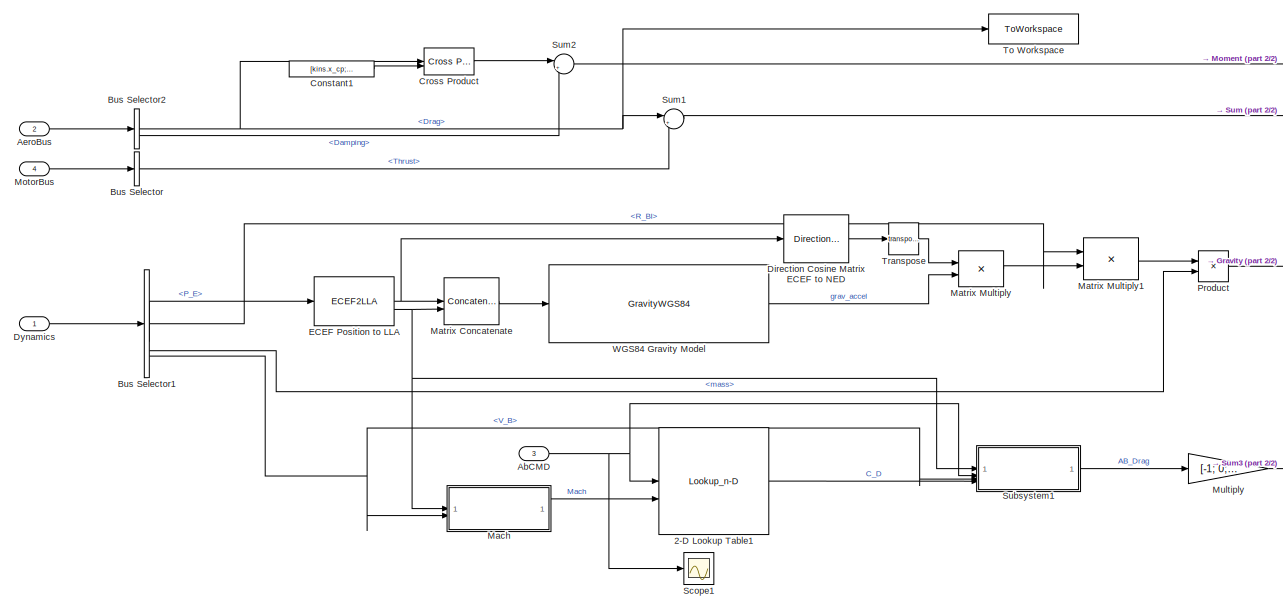
[diagram: Flight Dynamics/Newtonian Kinematics - part 1/2, center side, full height]
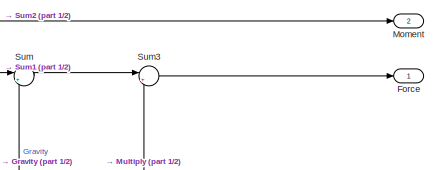
[diagram: Flight Dynamics/Newtonian Kinematics - part 2/2, top right region]
BLOCK [SubSystem] Flight Dynamics/Newtonian Kinematics
BLOCK [Lookup_n-D] Flight Dynamics/Newtonian Kinematics/2-D Lookup Table1
  BreakpointsForDimension1 = AeroModel.AB.PercentActuation
  BreakpointsForDimension2 = AeroModel.AB.MachNumbers
  InputPortMap = u0,u1
  InternalRulePriority = Speed
  RndMeth = Simplest
  Table = AeroModel.AB.CdGrid
BLOCK [Inport] Flight Dynamics/Newtonian Kinematics/AbCMD
  Port = 3
BLOCK [Inport] Flight Dynamics/Newtonian Kinematics/AeroBus
  Port = 2
BLOCK [BusSelector] Flight Dynamics/Newtonian Kinematics/Bus Selector
  OutputSignals = Thrust
BLOCK [BusSelector] Flight Dynamics/Newtonian Kinematics/Bus Selector1
  OutputSignals = R_BI,P_E,mass,V_B,R_BT
BLOCK [BusSelector] Flight Dynamics/Newtonian Kinematics/Bus Selector2
  OutputSignals = Drag,Damping
BLOCK [Constant] Flight Dynamics/Newtonian Kinematics/Constant1
  Value = [kins.x_cp; 0; 0]
BLOCK [Reference] Flight Dynamics/Newtonian Kinematics/Cross Product  REF=matrix_library/Cross Product
  LibrarySourceBlock = simulink/Matrix\nOperations/Cross Product
  SourceBlock = matrix_library/Cross Product
  SourceType = CrossProduct
BLOCK [Reference] Flight Dynamics/Newtonian Kinematics/Direction Cosine Matrix ECEF to NED  REF=aerolibtransform2/Direction Cosine Matrix
ECEF to NED
  SourceBlock = aerolibtransform2/Direction Cosine Matrix\nECEF to NED
  SourceType = DCM ECEF to NED
BLOCK [Inport] Flight Dynamics/Newtonian Kinematics/Dynamics
BLOCK [ECEF2LLA] Flight Dynamics/Newtonian Kinematics/ECEF Position to LLA
BLOCK [Outport] Flight Dynamics/Newtonian Kinematics/Force
BLOCK [SubSystem] Flight Dynamics/Newtonian Kinematics/Mach
BLOCK [Inport] Flight Dynamics/Newtonian Kinematics/Mach/<V_B>
  Port = 2
BLOCK [Product] Flight Dynamics/Newtonian Kinematics/Mach/Divide
  Inputs = */
BLOCK [DotProduct] Flight Dynamics/Newtonian Kinematics/Mach/Dot Product1
  OutDataTypeStr = Inherit: Inherit via internal rule
BLOCK [Reference] Flight Dynamics/Newtonian Kinematics/Mach/ISA Atmosphere Model  REF=aerolibatmos2/ISA Atmosphere Model
  SourceBlock = aerolibatmos2/ISA Atmosphere Model
  SourceType = International Standard Atmosphere Model
BLOCK [Outport] Flight Dynamics/Newtonian Kinematics/Mach/Mach
BLOCK [Scope] Flight Dynamics/Newtonian Kinematics/Mach/Scope
  ActiveDisplayYMaximum = 1
  ActiveDisplayYMinimum = -1
  DataLoggingVariableName = ScopeData1
  Floating = off
  GraphicalSettings = {"Style":{"BackgroundColor":[0.12941176470588237,0.12941176470588237,0.12941176470588237],"AxesColor":[0.07058823529411765,0.07058823529411765,0.07058823529411765],"LabelsColor":[0.8509803921568627,0.8509803921568627,0.8509803921568627],"PreserveColors":false,"Visible":[true],"LineStyle":["-"],"LineWidth":[1.5],"BarWidth":[0.9],"LineColor":["auto"],"LineFaceAlpha":[1],"LineEdgeAlpha":[1],"Marker":...<+1885ch>
  MultipleDisplayCache = [{"MaxYLimMag":1,"MaxYLimReal":1,"MinYLimMag":0,"MinYLimReal":-1,"PlotAsMagnitudePhase":false,"ShowGrid":true,"ShowLegend":false,"Title":"%<SignalLabel>","YLabel":""}]
  NumInputPorts = 1
  ScopeFrameLocation = window
  WasSavedAsWebScope = on
  WindowPosition = [551.000000,247.000000,563.000000,422.000000,]
BLOCK [Sqrt] Flight Dynamics/Newtonian Kinematics/Mach/Sqrt1
BLOCK [Terminator] Flight Dynamics/Newtonian Kinematics/Mach/Terminator
BLOCK [Terminator] Flight Dynamics/Newtonian Kinematics/Mach/Terminator1
BLOCK [Terminator] Flight Dynamics/Newtonian Kinematics/Mach/Terminator2
BLOCK [Inport] Flight Dynamics/Newtonian Kinematics/Mach/alt
BLOCK [Concatenate] Flight Dynamics/Newtonian Kinematics/Matrix Concatenate
BLOCK [Product] Flight Dynamics/Newtonian Kinematics/Matrix Multiply
  Multiplication = Matrix(*)
BLOCK [Product] Flight Dynamics/Newtonian Kinematics/Matrix Multiply1
  Multiplication = Matrix(*)
BLOCK [Outport] Flight Dynamics/Newtonian Kinematics/Moment
  Port = 2
BLOCK [Inport] Flight Dynamics/Newtonian Kinematics/MotorBus
  Port = 4
BLOCK [Gain] Flight Dynamics/Newtonian Kinematics/Multiply
  Gain = [-1; 0; 0]
BLOCK [Product] Flight Dynamics/Newtonian Kinematics/Product
BLOCK [Scope] Flight Dynamics/Newtonian Kinematics/Scope1
  ActiveDisplayYMaximum = 1
  ActiveDisplayYMinimum = -1
  DataLoggingVariableName = ScopeData3
  Floating = off
  GraphicalSettings = {"GraphicalSettings":{"LegacySettings":true,"Style":{"Style":{"AxesColor":"[0 0 0]","ChannelNames":[""],"ColorOrder":"[1 0.909803921568627 0.392156862745098;0.149019607843137 0.549019607843137 0.866666666666667;0.96078431372549 0.466666666666667 0.16078431372549;0.286274509803922 0.858823529411765 0.250980392156863;0.752941176470588 0.36078431372549 0.984313725490196;0.423529411764706 0.9568627450...<+456ch>
  MultipleDisplayCache = [{"MaxYLimMag":1,"MaxYLimReal":1,"MinYLimMag":0,"MinYLimReal":-1,"PlotAsMagnitudePhase":false,"ShowGrid":true,"ShowLegend":false,"Title":"%<SignalLabel>","YLabel":""}]
  NumInputPorts = 1
  WasSavedAsWebScope = on
BLOCK [SubSystem] Flight Dynamics/Newtonian Kinematics/Subsystem1
BLOCK [Inport] Flight Dynamics/Newtonian Kinematics/Subsystem1/<V_B>
  Port = 3
BLOCK [Inport] Flight Dynamics/Newtonian Kinematics/Subsystem1/AbCMD
  Port = 2
BLOCK [Outport] Flight Dynamics/Newtonian Kinematics/Subsystem1/Aero Force
BLOCK [Inport] Flight Dynamics/Newtonian Kinematics/Subsystem1/Coeff
  Port = 4
BLOCK [Constant] Flight Dynamics/Newtonian Kinematics/Subsystem1/Constant
  Value = 2
BLOCK [DotProduct] Flight Dynamics/Newtonian Kinematics/Subsystem1/Dot Product1
  OutDataTypeStr = Inherit: Inherit via internal rule
BLOCK [Gain] Flight Dynamics/Newtonian Kinematics/Subsystem1/Gain
  Gain = 1/2 * 0.08453
BLOCK [Reference] Flight Dynamics/Newtonian Kinematics/Subsystem1/ISA Atmosphere Model  REF=aerolibatmos2/ISA Atmosphere Model
  SourceBlock = aerolibatmos2/ISA Atmosphere Model
  SourceType = International Standard Atmosphere Model
BLOCK [Math] Flight Dynamics/Newtonian Kinematics/Subsystem1/Power
  Operator = pow
BLOCK [Product] Flight Dynamics/Newtonian Kinematics/Subsystem1/Product
BLOCK [Product] Flight Dynamics/Newtonian Kinematics/Subsystem1/Product1
BLOCK [Product] Flight Dynamics/Newtonian Kinematics/Subsystem1/Product2
BLOCK [Sqrt] Flight Dynamics/Newtonian Kinematics/Subsystem1/Sqrt1
BLOCK [Inport] Flight Dynamics/Newtonian Kinematics/Subsystem1/alt
BLOCK [Sum] Flight Dynamics/Newtonian Kinematics/Sum
  Inputs = |++
BLOCK [Sum] Flight Dynamics/Newtonian Kinematics/Sum1
  Inputs = |++
BLOCK [Sum] Flight Dynamics/Newtonian Kinematics/Sum2
  Inputs = |++
BLOCK [Sum] Flight Dynamics/Newtonian Kinematics/Sum3
  Inputs = |++
BLOCK [ToWorkspace] Flight Dynamics/Newtonian Kinematics/To Workspace
  FixptAsFi = on
  MaxDataPoints = inf
  SampleTime = -1
  SaveFormat = Timeseries
  VariableName = F_D
BLOCK [Math] Flight Dynamics/Newtonian Kinematics/Transpose
  Operator = transpose
BLOCK [GravityWGS84] Flight Dynamics/Newtonian Kinematics/WGS84 Gravity Model  
BLOCK [Inport] Flight Dynamics/ServoCMD
BLOCK [Switch] Flight Dynamics/Switch
  InputSameDT = off
  SaturateOnIntegerOverflow = off
BLOCK [Switch] Flight Dynamics/Switch1
  InputSameDT = off
  SaturateOnIntegerOverflow = off
BLOCK [Inport] Flight Dynamics/Time
  Port = 2
BLOCK [From] From
  GotoTag = Time
BLOCK [From] From1
  GotoTag = Dynamics
BLOCK [From] From2
  GotoTag = NavBus
BLOCK [From] From3
  GotoTag = SensorBus
BLOCK [From] From4
  GotoTag = Dynamics
BLOCK [Goto] Goto
  GotoTag = RunTime
BLOCK [Goto] Goto1
  GotoTag = Time
BLOCK [Goto] Goto2
  GotoTag = Dynamics
BLOCK [Goto] Goto3
  GotoTag = NavBus
BLOCK [Goto] Goto4
  GotoTag = SensorBus
BLOCK [RelationalOperator] Relational Operator
  InputSameDT = off
  Operator = <=
  OutDataTypeStr = boolean
  RndMeth = Simplest
BLOCK [SubSystem] Save Output
BLOCK [BusSelector] Save Output/Bus Selector
  OutputSignals = V_E,mass,dw_ib_B,a_B,w_ib_B,V_B,RPY,LLA,P_E,R_BT,R_TE
BLOCK [DigitalClock] Save Output/Digital Clock
BLOCK [Inport] Save Output/Dynamics
  Port = 3
BLOCK [Reference] Save Output/ECEF To ECI  REF=lib_utils/ECEF To ECI  (lib defined in slx_1567950a989c)
  Commented = on
  SourceBlock = lib_utils/ECEF To ECI
  SourceType = SubSystem
BLOCK [Inport] Save Output/NavBus
BLOCK [Inport] Save Output/SensorBus
  Port = 2
BLOCK [ToWorkspace] Save Output/To Workspace
  FixptAsFi = on
  MaxDataPoints = inf
  SampleTime = -1
  SaveFormat = Timeseries
  VariableName = V_E
BLOCK [ToWorkspace] Save Output/To Workspace1
  FixptAsFi = on
  MaxDataPoints = inf
  SampleTime = -1
  SaveFormat = Timeseries
  VariableName = mass
BLOCK [ToWorkspace] Save Output/To Workspace10
  FixptAsFi = on
  MaxDataPoints = inf
  SampleTime = -1
  SaveFormat = Timeseries
  VariableName = SensorBus
BLOCK [ToWorkspace] Save Output/To Workspace11
  Commented = on
  FixptAsFi = on
  MaxDataPoints = inf
  SampleTime = -1
  SaveFormat = Timeseries
  VariableName = P_I
BLOCK [ToWorkspace] Save Output/To Workspace12
  FixptAsFi = on
  MaxDataPoints = inf
  SampleTime = -1
  SaveFormat = Timeseries
  VariableName = R_BT
BLOCK [ToWorkspace] Save Output/To Workspace13
  FixptAsFi = on
  MaxDataPoints = inf
  SampleTime = -1
  SaveFormat = Timeseries
  VariableName = R_TE
BLOCK [ToWorkspace] Save Output/To Workspace2
  FixptAsFi = on
  MaxDataPoints = inf
  SampleTime = -1
  SaveFormat = Timeseries
  VariableName = dw_ib_B
BLOCK [ToWorkspace] Save Output/To Workspace3
  FixptAsFi = on
  MaxDataPoints = inf
  SampleTime = -1
  SaveFormat = Timeseries
  VariableName = A_B
BLOCK [ToWorkspace] Save Output/To Workspace4
  FixptAsFi = on
  MaxDataPoints = inf
  SampleTime = -1
  SaveFormat = Timeseries
  VariableName = w_ib_B
BLOCK [ToWorkspace] Save Output/To Workspace5
  FixptAsFi = on
  MaxDataPoints = inf
  SampleTime = -1
  SaveFormat = Timeseries
  VariableName = V_B
BLOCK [ToWorkspace] Save Output/To Workspace6
  FixptAsFi = on
  MaxDataPoints = inf
  SampleTime = -1
  SaveFormat = Timeseries
  VariableName = RPY
BLOCK [ToWorkspace] Save Output/To Workspace7
  FixptAsFi = on
  MaxDataPoints = inf
  SampleTime = -1
  SaveFormat = Timeseries
  VariableName = LLA
BLOCK [ToWorkspace] Save Output/To Workspace8
  FixptAsFi = on
  MaxDataPoints = inf
  SampleTime = -1
  SaveFormat = Timeseries
  VariableName = P_E
BLOCK [ToWorkspace] Save Output/To Workspace9
  FixptAsFi = on
  MaxDataPoints = inf
  SampleTime = -1
  SaveFormat = Timeseries
  VariableName = NavBus
BLOCK [Selector] Selector
  IndexOptions = Index vector (dialog)
  Indices = 3
  InputPortWidth = 3
  OutputSizes = 1
BLOCK [Stop] Stop Simulation
BLOCK [Sum] Sum
  Inputs = ++|
ANNOTATION (root): Conditional Watchdog
ANNOTATION (root): Time Keeping
LINE Bus Selector:1 -> Selector:1
NET Clock:1 -> Goto:1, Sum:1
LINE Constant1:1 -> Relational Operator:2
LINE Constant:1 -> Sum:2
LINE Flight Computer/Constant:1 -> Flight Computer/AbCMD:1
NET Flight Computer/Dynamics:1 -> Flight Computer/Sensor Bus:1, Flight Computer/State Machine:1
LINE Flight Computer/From:1 -> Flight Computer/UKF:2
LINE Flight Computer/Sensor Bus/Bus Creator1:1 -> Flight Computer/Sensor Bus/Bus Creator3:1
LINE Flight Computer/Sensor Bus/Bus Creator2:1 -> Flight Computer/Sensor Bus/Bus Creator3:3
LINE Flight Computer/Sensor Bus/Bus Creator3:1 -> Flight Computer/Sensor Bus/SensorBus:1
LINE Flight Computer/Sensor Bus/Bus Creator5:1 -> Flight Computer/Sensor Bus/Bus Creator3:4
LINE Flight Computer/Sensor Bus/Bus Creator:1 -> Flight Computer/Sensor Bus/Bus Creator3:2
LINE Flight Computer/Sensor Bus/Bus Selector2:1 -> Flight Computer/Sensor Bus/ICM20948:1
LINE Flight Computer/Sensor Bus/Bus Selector2:2 -> Flight Computer/Sensor Bus/Transpose3:1
LINE Flight Computer/Sensor Bus/Bus Selector2:3 -> Flight Computer/Sensor Bus/ICM20948:3
LINE Flight Computer/Sensor Bus/Bus Selector2:4 -> Flight Computer/Sensor Bus/Terminator:1
LINE Flight Computer/Sensor Bus/Bus Selector3:1 -> Flight Computer/Sensor Bus/Bus Creator2:1
LINE Flight Computer/Sensor Bus/Bus Selector4:1 -> Flight Computer/Sensor Bus/Selector6:1
LINE Flight Computer/Sensor Bus/Bus Selector:1 -> Flight Computer/Sensor Bus/Matrix Multiply2:1
NET Flight Computer/Sensor Bus/Bus Selector:2 -> Flight Computer/Sensor Bus/Selector3:1, Flight Computer/Sensor Bus/Selector4:1, Flight Computer/Sensor Bus/Selector5:1
NET Flight Computer/Sensor Bus/Dynamics:1 -> Flight Computer/Sensor Bus/Unit Delay1:1, Flight Computer/Sensor Bus/Unit Delay2:1, Flight Computer/Sensor Bus/Unit Delay3:1, Flight Computer/Sensor Bus/Unit Delay4:1
LINE Flight Computer/Sensor Bus/Gain1:1 -> Flight Computer/Sensor Bus/Matrix Multiply2:2
LINE Flight Computer/Sensor Bus/ICM20948/<R_BT>:1 -> Flight Computer/Sensor Bus/ICM20948/MATLAB Function:2
LINE Flight Computer/Sensor Bus/ICM20948/<a_b>:1 -> Flight Computer/Sensor Bus/ICM20948/MATLAB Function:1
NET Flight Computer/Sensor Bus/ICM20948/<w_ib_B>:1 -> Flight Computer/Sensor Bus/ICM20948/MATLAB Function 2:1, Flight Computer/Sensor Bus/ICM20948/w_ib_B_true:1
LINE Flight Computer/Sensor Bus/ICM20948/MATLAB Function 1:1 -> Flight Computer/Sensor Bus/ICM20948/sf_B_corr:1
LINE Flight Computer/Sensor Bus/ICM20948/MATLAB Function 2:1 -> Flight Computer/Sensor Bus/ICM20948/w_ib_B_corr:1
NET Flight Computer/Sensor Bus/ICM20948/MATLAB Function:1 -> Flight Computer/Sensor Bus/ICM20948/MATLAB Function 1:1, Flight Computer/Sensor Bus/ICM20948/sf_B_true:1
LINE Flight Computer/Sensor Bus/ICM20948:1 -> Flight Computer/Sensor Bus/Bus Creator1:1
LINE Flight Computer/Sensor Bus/ICM20948:2 -> Flight Computer/Sensor Bus/Bus Creator1:2
LINE Flight Computer/Sensor Bus/ICM20948:3 -> Flight Computer/Sensor Bus/Bus Creator1:3
LINE Flight Computer/Sensor Bus/ICM20948:4 -> Flight Computer/Sensor Bus/Bus Creator1:4
LINE Flight Computer/Sensor Bus/International Geomagnetic Reference Field:1 -> Flight Computer/Sensor Bus/Gain1:1
LINE Flight Computer/Sensor Bus/MATLAB Function1:1 -> Flight Computer/Sensor Bus/Bus Creator:1
LINE Flight Computer/Sensor Bus/MATLAB Function2:1 -> Flight Computer/Sensor Bus/Bus Creator5:1
LINE Flight Computer/Sensor Bus/MATLAB Function2:2 -> Flight Computer/Sensor Bus/Bus Creator5:2
NET Flight Computer/Sensor Bus/Matrix Multiply2:1 -> Flight Computer/Sensor Bus/Bus Creator:2, Flight Computer/Sensor Bus/MATLAB Function1:1
LINE Flight Computer/Sensor Bus/Selector3:1 -> Flight Computer/Sensor Bus/International Geomagnetic Reference Field:1
LINE Flight Computer/Sensor Bus/Selector4:1 -> Flight Computer/Sensor Bus/International Geomagnetic Reference Field:2
LINE Flight Computer/Sensor Bus/Selector5:1 -> Flight Computer/Sensor Bus/International Geomagnetic Reference Field:3
LINE Flight Computer/Sensor Bus/Selector6:1 -> Flight Computer/Sensor Bus/MATLAB Function2:1
LINE Flight Computer/Sensor Bus/Transpose3:1 -> Flight Computer/Sensor Bus/ICM20948:2
LINE Flight Computer/Sensor Bus/Unit Delay1:1 -> Flight Computer/Sensor Bus/Bus Selector:1
LINE Flight Computer/Sensor Bus/Unit Delay2:1 -> Flight Computer/Sensor Bus/Bus Selector3:1
LINE Flight Computer/Sensor Bus/Unit Delay3:1 -> Flight Computer/Sensor Bus/Bus Selector2:1
LINE Flight Computer/Sensor Bus/Unit Delay4:1 -> Flight Computer/Sensor Bus/Bus Selector4:1
NET Flight Computer/Sensor Bus:1 -> Flight Computer/SensorBus:1, Flight Computer/UKF:1
LINE Flight Computer/State Machine/Bus Selector:1 -> Flight Computer/State Machine/Selector:1
LINE Flight Computer/State Machine/Bus Selector:2 -> Flight Computer/State Machine/Selector1:1
LINE Flight Computer/State Machine/Bus Selector:3 -> Flight Computer/State Machine/Matrix Multiply:2
LINE Flight Computer/State Machine/Bus Selector:4 -> Flight Computer/State Machine/Transpose:1
LINE Flight Computer/State Machine/Bus Selector:5 -> Flight Computer/State Machine/Terminator:1
LINE Flight Computer/State Machine/Chart:1 -> Flight Computer/State Machine/Guid:1
LINE Flight Computer/State Machine/Chart:2 -> Flight Computer/State Machine/State:1
LINE Flight Computer/State Machine/Dynamics:1 -> Flight Computer/State Machine/Bus Selector:1
LINE Flight Computer/State Machine/Gain:1 -> Flight Computer/State Machine/Chart:3
LINE Flight Computer/State Machine/Matrix Multiply:1 -> Flight Computer/State Machine/Selector2:1
LINE Flight Computer/State Machine/Selector1:1 -> Flight Computer/State Machine/Chart:2
LINE Flight Computer/State Machine/Selector2:1 -> Flight Computer/State Machine/Gain:1
LINE Flight Computer/State Machine/Selector:1 -> Flight Computer/State Machine/Chart:1
LINE Flight Computer/State Machine/Transpose:1 -> Flight Computer/State Machine/Matrix Multiply:1
NET Flight Computer/State Machine:1 -> Flight Computer/Goto:1, Flight Computer/Subsystem:1
LINE Flight Computer/State Machine:2 -> Flight Computer/Subsystem:2
LINE Flight Computer/Subsystem/Compare To Constant:1 -> Flight Computer/Subsystem/Switch1:2
LINE Flight Computer/Subsystem/Constant1:1 -> Flight Computer/Subsystem/Switch1:3
LINE Flight Computer/Subsystem/Constant:1 -> Flight Computer/Subsystem/Switch1:1
LINE Flight Computer/Subsystem/Guid:1 -> Flight Computer/Subsystem/Unit Delay:1
LINE Flight Computer/Subsystem/Switch1:1 -> Flight Computer/Subsystem/AbCMD:1
LINE Flight Computer/Subsystem/Unit Delay:1 -> Flight Computer/Subsystem/Compare To Constant:1
LINE Flight Computer/Subsystem:1 -> Flight Computer/Terminator:1
LINE Flight Computer/UKF/Compare To Constant:1 -> Flight Computer/UKF/Delay One Step:1
NET Flight Computer/UKF/Delay One Step:1 -> Flight Computer/UKF/Delay1:2, Flight Computer/UKF/Goto:1
LINE Flight Computer/UKF/Delay1:1 -> Flight Computer/UKF/Prediction Step:1
LINE Flight Computer/UKF/From1:1 -> Flight Computer/UKF/Update Step:enable
LINE Flight Computer/UKF/From:1 -> Flight Computer/UKF/Prediction Step:enable
LINE Flight Computer/UKF/Initialize Nav/Bus Creator:1 -> Flight Computer/UKF/Initialize Nav/NavBus:1
LINE Flight Computer/UKF/Initialize Nav/Constant1:1 -> Flight Computer/UKF/Initialize Nav/Bus Creator:6
LINE Flight Computer/UKF/Initialize Nav/Constant2:1 -> Flight Computer/UKF/Initialize Nav/Bus Creator:3
LINE Flight Computer/UKF/Initialize Nav/Constant3:1 -> Flight Computer/UKF/Initialize Nav/Bus Creator:4
LINE Flight Computer/UKF/Initialize Nav/Constant4:1 -> Flight Computer/UKF/Initialize Nav/Bus Creator:5
LINE Flight Computer/UKF/Initialize Nav/Constant5:1 -> Flight Computer/UKF/Initialize Nav/Bus Creator:7
LINE Flight Computer/UKF/Initialize Nav/Delay One Step:1 -> Flight Computer/UKF/Initialize Nav/Initialize State:1
LINE Flight Computer/UKF/Initialize Nav/Gain:1 -> Flight Computer/UKF/Initialize Nav/Bus Creator:2
LINE Flight Computer/UKF/Initialize Nav/Initialize State/Bus Selector2:1 -> Flight Computer/UKF/Initialize Nav/Initialize State/MATLAB Function1:1
LINE Flight Computer/UKF/Initialize Nav/Initialize State/Bus Selector2:2 -> Flight Computer/UKF/Initialize Nav/Initialize State/MATLAB Function1:2
LINE Flight Computer/UKF/Initialize Nav/Initialize State/MATLAB Function1:1 -> Flight Computer/UKF/Initialize Nav/Initialize State/MATLAB Function4:2
LINE Flight Computer/UKF/Initialize Nav/Initialize State/MATLAB Function2:1 -> Flight Computer/UKF/Initialize Nav/Initialize State/MATLAB Function3:2
LINE Flight Computer/UKF/Initialize Nav/Initialize State/MATLAB Function4:1 -> Flight Computer/UKF/Initialize Nav/Initialize State/x_0:1
LINE Flight Computer/UKF/Initialize Nav/Initialize State/MATLAB Function4:2 -> Flight Computer/UKF/Initialize Nav/Initialize State/initFlag:1
LINE Flight Computer/UKF/Initialize Nav/Initialize State/SensorBus:1 -> Flight Computer/UKF/Initialize Nav/Initialize State/Bus Selector2:1
LINE Flight Computer/UKF/Initialize Nav/Initialize State/initFlagLoop:1 -> Flight Computer/UKF/Initialize Nav/Initialize State/MATLAB Function4:1
NET Flight Computer/UKF/Initialize Nav/Initialize State:1 -> Flight Computer/UKF/Initialize Nav/Bus Creator:1, Flight Computer/UKF/Initialize Nav/Gain:1
NET Flight Computer/UKF/Initialize Nav/Initialize State:2 -> Flight Computer/UKF/Initialize Nav/Delay One Step:1, Flight Computer/UKF/Initialize Nav/initFlag:1
LINE Flight Computer/UKF/Initialize Nav/SensorBus:1 -> Flight Computer/UKF/Initialize Nav/Initialize State:2
LINE Flight Computer/UKF/Initialize Nav:1 -> Flight Computer/UKF/Compare To Constant:1
LINE Flight Computer/UKF/Initialize Nav:2 -> Flight Computer/UKF/Delay1:3
LINE Flight Computer/UKF/Prediction Step/Bus Selector:1 -> Flight Computer/UKF/Prediction Step/MATLAB Function:2
LINE Flight Computer/UKF/Prediction Step/Bus Selector:2 -> Flight Computer/UKF/Prediction Step/MATLAB Function:3
LINE Flight Computer/UKF/Prediction Step/MATLAB Function:1 -> Flight Computer/UKF/Prediction Step/navOut:1
LINE Flight Computer/UKF/Prediction Step/NavBus:1 -> Flight Computer/UKF/Prediction Step/MATLAB Function:1
LINE Flight Computer/UKF/Prediction Step/SensorBus:1 -> Flight Computer/UKF/Prediction Step/Bus Selector:1
LINE Flight Computer/UKF/Prediction Step:1 -> Flight Computer/UKF/Update Step:1
NET Flight Computer/UKF/SensorBus:1 -> Flight Computer/UKF/Initialize Nav:1, Flight Computer/UKF/Prediction Step:2, Flight Computer/UKF/Update Step:3
LINE Flight Computer/UKF/State:1 -> Flight Computer/UKF/Update Step:2
LINE Flight Computer/UKF/Update Step/Baro Update/Bus Selector:1 -> Flight Computer/UKF/Update Step/Baro Update/MATLAB Function:2
LINE Flight Computer/UKF/Update Step/Baro Update/MATLAB Function:1 -> Flight Computer/UKF/Update Step/Baro Update/navOut:1
LINE Flight Computer/UKF/Update Step/Baro Update/SensorBus:1 -> Flight Computer/UKF/Update Step/Baro Update/Bus Selector:1
LINE Flight Computer/UKF/Update Step/Baro Update/navBus:1 -> Flight Computer/UKF/Update Step/Baro Update/MATLAB Function:1
LINE Flight Computer/UKF/Update Step/Baro Update:1 -> Flight Computer/UKF/Update Step/Switch3:1
NET Flight Computer/UKF/Update Step/Compare To Constant1:1 -> Flight Computer/UKF/Update Step/GPS Update:enable, Flight Computer/UKF/Update Step/Switch1:2
NET Flight Computer/UKF/Update Step/Compare To Constant2:1 -> Flight Computer/UKF/Update Step/Mag Update:enable, Flight Computer/UKF/Update Step/Switch2:2
NET Flight Computer/UKF/Update Step/Compare To Constant3:1 -> Flight Computer/UKF/Update Step/Baro Update:enable, Flight Computer/UKF/Update Step/Switch3:2
LINE Flight Computer/UKF/Update Step/Compare To Constant:1 -> Flight Computer/UKF/Update Step/Switch:2
LINE Flight Computer/UKF/Update Step/Discrete Pulse Generator1:1 -> Flight Computer/UKF/Update Step/Compare To Constant2:1
LINE Flight Computer/UKF/Update Step/Discrete Pulse Generator2:1 -> Flight Computer/UKF/Update Step/Compare To Constant3:1
LINE Flight Computer/UKF/Update Step/Discrete Pulse Generator:1 -> Flight Computer/UKF/Update Step/Compare To Constant1:1
LINE Flight Computer/UKF/Update Step/From1:1 -> Flight Computer/UKF/Update Step/GPS Update:1
LINE Flight Computer/UKF/Update Step/From2:1 -> Flight Computer/UKF/Update Step/Mag Update:1
LINE Flight Computer/UKF/Update Step/From3:1 -> Flight Computer/UKF/Update Step/Baro Update:1
LINE Flight Computer/UKF/Update Step/From:1 -> Flight Computer/UKF/Update Step/Gravity Update:2
LINE Flight Computer/UKF/Update Step/GPS Update/Bus Selector:1 -> Flight Computer/UKF/Update Step/GPS Update/MATLAB Function:2
LINE Flight Computer/UKF/Update Step/GPS Update/MATLAB Function:1 -> Flight Computer/UKF/Update Step/GPS Update/navOut:1
LINE Flight Computer/UKF/Update Step/GPS Update/SensorBus:1 -> Flight Computer/UKF/Update Step/GPS Update/Bus Selector:1
LINE Flight Computer/UKF/Update Step/GPS Update/navBus:1 -> Flight Computer/UKF/Update Step/GPS Update/MATLAB Function:1
LINE Flight Computer/UKF/Update Step/GPS Update:1 -> Flight Computer/UKF/Update Step/Switch1:1
LINE Flight Computer/UKF/Update Step/Gravity Update/Bus Selector:1 -> Flight Computer/UKF/Update Step/Gravity Update/MATLAB Function:2
LINE Flight Computer/UKF/Update Step/Gravity Update/MATLAB Function:1 -> Flight Computer/UKF/Update Step/Gravity Update/navOut:1
LINE Flight Computer/UKF/Update Step/Gravity Update/SensorBus:1 -> Flight Computer/UKF/Update Step/Gravity Update/Bus Selector:1
LINE Flight Computer/UKF/Update Step/Gravity Update/navBus:1 -> Flight Computer/UKF/Update Step/Gravity Update/MATLAB Function:1
LINE Flight Computer/UKF/Update Step/MATLAB Function:1 -> Flight Computer/UKF/Update Step/Switch:3
LINE Flight Computer/UKF/Update Step/Mag Update/Bus Selector:1 -> Flight Computer/UKF/Update Step/Mag Update/MATLAB Function:2
LINE Flight Computer/UKF/Update Step/Mag Update/MATLAB Function:1 -> Flight Computer/UKF/Update Step/Mag Update/navOut:1
LINE Flight Computer/UKF/Update Step/Mag Update/SensorBus:1 -> Flight Computer/UKF/Update Step/Mag Update/Bus Selector:1
LINE Flight Computer/UKF/Update Step/Mag Update/navBus:1 -> Flight Computer/UKF/Update Step/Mag Update/MATLAB Function:1
LINE Flight Computer/UKF/Update Step/Mag Update:1 -> Flight Computer/UKF/Update Step/Switch2:1
LINE Flight Computer/UKF/Update Step/SensorBus:1 -> Flight Computer/UKF/Update Step/Goto:1
LINE Flight Computer/UKF/Update Step/State:1 -> Flight Computer/UKF/Update Step/Compare To Constant:1
NET Flight Computer/UKF/Update Step/Switch1:1 -> Flight Computer/UKF/Update Step/Mag Update:2, Flight Computer/UKF/Update Step/Switch2:3
NET Flight Computer/UKF/Update Step/Switch:1 -> Flight Computer/UKF/Update Step/GPS Update:2, Flight Computer/UKF/Update Step/Switch1:3, Flight Computer/UKF/Update Step/navOut:1
NET Flight Computer/UKF/Update Step/navBus:1 -> Flight Computer/UKF/Update Step/Gravity Update:1, Flight Computer/UKF/Update Step/MATLAB Function:1
NET Flight Computer/UKF/Update Step:1 -> Flight Computer/UKF/Delay1:1, Flight Computer/UKF/NavBus:1
LINE Flight Computer/UKF:1 -> Flight Computer/NavBus:1
LINE Flight Computer:1 -> Flight Dynamics:1
LINE Flight Computer:2 -> Goto3:1
LINE Flight Computer:3 -> Goto4:1
LINE Flight Dynamics/6DOF ECEF (Quaternion):1 -> Flight Dynamics/Bus Creator:1
LINE Flight Dynamics/6DOF ECEF (Quaternion):10 -> Flight Dynamics/Bus Creator:10
LINE Flight Dynamics/6DOF ECEF (Quaternion):11 -> Flight Dynamics/Bus Creator:11
LINE Flight Dynamics/6DOF ECEF (Quaternion):12 -> Flight Dynamics/Bus Creator:12
LINE Flight Dynamics/6DOF ECEF (Quaternion):14 -> Flight Dynamics/Bus Creator:13
LINE Flight Dynamics/6DOF ECEF (Quaternion):2 -> Flight Dynamics/Bus Creator:2
LINE Flight Dynamics/6DOF ECEF (Quaternion):3 -> Flight Dynamics/Bus Creator:3
LINE Flight Dynamics/6DOF ECEF (Quaternion):4 -> Flight Dynamics/Bus Creator:4
LINE Flight Dynamics/6DOF ECEF (Quaternion):5 -> Flight Dynamics/Bus Creator:5
LINE Flight Dynamics/6DOF ECEF (Quaternion):6 -> Flight Dynamics/Bus Creator:6
LINE Flight Dynamics/6DOF ECEF (Quaternion):7 -> Flight Dynamics/Bus Creator:7
LINE Flight Dynamics/6DOF ECEF (Quaternion):8 -> Flight Dynamics/Bus Creator:8
LINE Flight Dynamics/6DOF ECEF (Quaternion):9 -> Flight Dynamics/Bus Creator:9
LINE Flight Dynamics/Aero/2-D Lookup Table1:1 -> Flight Dynamics/Aero/Subsystem:2
LINE Flight Dynamics/Aero/Abs:1 -> Flight Dynamics/Aero/2-D Lookup Table1:1
LINE Flight Dynamics/Aero/AoA/Atan:1 -> Flight Dynamics/Aero/AoA/AoA:1
LINE Flight Dynamics/Aero/AoA/Divide:1 -> Flight Dynamics/Aero/AoA/Atan:1
LINE Flight Dynamics/Aero/AoA/Selector1:1 -> Flight Dynamics/Aero/AoA/Divide:2
LINE Flight Dynamics/Aero/AoA/Selector:1 -> Flight Dynamics/Aero/AoA/Divide:1
NET Flight Dynamics/Aero/AoA/Vec_hat:1 -> Flight Dynamics/Aero/AoA/Selector1:1, Flight Dynamics/Aero/AoA/Selector:1
LINE Flight Dynamics/Aero/AoA:1 -> Flight Dynamics/Aero/Radians to Degrees:1
LINE Flight Dynamics/Aero/Bus Creator1:1 -> Flight Dynamics/Aero/AeroBus:1
NET Flight Dynamics/Aero/Bus Selector:1 -> Flight Dynamics/Aero/Magnitude:1, Flight Dynamics/Aero/Sum:1
LINE Flight Dynamics/Aero/Bus Selector:2 -> Flight Dynamics/Aero/ECEF Position to LLA:1
LINE Flight Dynamics/Aero/Bus Selector:3 -> Flight Dynamics/Aero/Dryden Wind Turbulence Model (Discrete (+q +r)):3
LINE Flight Dynamics/Aero/Constant:1 -> Flight Dynamics/Aero/Bus Creator1:2
NET Flight Dynamics/Aero/Damping/Bus Selector:1 -> Flight Dynamics/Aero/Damping/Product:1, Flight Dynamics/Aero/Damping/Scope:1
LINE Flight Dynamics/Aero/Damping/Constant1:1 -> Flight Dynamics/Aero/Damping/Vector Concatenate:2
LINE Flight Dynamics/Aero/Damping/Constant2:1 -> Flight Dynamics/Aero/Damping/Vector Concatenate:3
LINE Flight Dynamics/Aero/Damping/Constant:1 -> Flight Dynamics/Aero/Damping/Vector Concatenate:1
LINE Flight Dynamics/Aero/Damping/Dynamics:1 -> Flight Dynamics/Aero/Damping/Bus Selector:1
LINE Flight Dynamics/Aero/Damping/Product:1 -> Flight Dynamics/Aero/Damping/Coeff:1
LINE Flight Dynamics/Aero/Damping/Vector Concatenate:1 -> Flight Dynamics/Aero/Damping/Product:2
LINE Flight Dynamics/Aero/Damping:1 -> Flight Dynamics/Aero/Subsystem2:2
LINE Flight Dynamics/Aero/Dryden Wind Turbulence Model (Discrete (+q +r)):1 -> Flight Dynamics/Aero/Sum:2
LINE Flight Dynamics/Aero/Dryden Wind Turbulence Model (Discrete (+q +r)):2 -> Flight Dynamics/Aero/Bus Creator1:3
NET Flight Dynamics/Aero/Dynamics:1 -> Flight Dynamics/Aero/Bus Selector:1, Flight Dynamics/Aero/Damping:1
LINE Flight Dynamics/Aero/ECEF Position to LLA:1 -> Flight Dynamics/Aero/Terminator:1
NET Flight Dynamics/Aero/ECEF Position to LLA:2 -> Flight Dynamics/Aero/Dryden Wind Turbulence Model (Discrete (+q +r)):1, Flight Dynamics/Aero/Mach:2, Flight Dynamics/Aero/Subsystem2:3, Flight Dynamics/Aero/Subsystem:3
LINE Flight Dynamics/Aero/Gain:1 -> Flight Dynamics/Aero/Product1:1
NET Flight Dynamics/Aero/Mach/<V_B>:1 -> Flight Dynamics/Aero/Mach/Dot Product1:1, Flight Dynamics/Aero/Mach/Dot Product1:2
LINE Flight Dynamics/Aero/Mach/Divide:1 -> Flight Dynamics/Aero/Mach/Mach:1
LINE Flight Dynamics/Aero/Mach/Dot Product1:1 -> Flight Dynamics/Aero/Mach/Sqrt1:1
LINE Flight Dynamics/Aero/Mach/ISA Atmosphere Model:1 -> Flight Dynamics/Aero/Mach/Terminator:1
LINE Flight Dynamics/Aero/Mach/ISA Atmosphere Model:2 -> Flight Dynamics/Aero/Mach/Divide:2
LINE Flight Dynamics/Aero/Mach/ISA Atmosphere Model:3 -> Flight Dynamics/Aero/Mach/Terminator1:1
LINE Flight Dynamics/Aero/Mach/ISA Atmosphere Model:4 -> Flight Dynamics/Aero/Mach/Terminator2:1
LINE Flight Dynamics/Aero/Mach/Sqrt1:1 -> Flight Dynamics/Aero/Mach/Divide:1
LINE Flight Dynamics/Aero/Mach/alt:1 -> Flight Dynamics/Aero/Mach/ISA Atmosphere Model:1
LINE Flight Dynamics/Aero/Mach:1 -> Flight Dynamics/Aero/2-D Lookup Table1:2
LINE Flight Dynamics/Aero/Magnitude/Dot Product:1 -> Flight Dynamics/Aero/Magnitude/Sqrt:1
NET Flight Dynamics/Aero/Magnitude/In1:1 -> Flight Dynamics/Aero/Magnitude/Dot Product:1, Flight Dynamics/Aero/Magnitude/Dot Product:2
LINE Flight Dynamics/Aero/Magnitude/Sqrt:1 -> Flight Dynamics/Aero/Magnitude/Out1:1
LINE Flight Dynamics/Aero/Magnitude:1 -> Flight Dynamics/Aero/Dryden Wind Turbulence Model (Discrete (+q +r)):2
LINE Flight Dynamics/Aero/Product1:1 -> Flight Dynamics/Aero/Bus Creator1:1
LINE Flight Dynamics/Aero/Radians to Degrees:1 -> Flight Dynamics/Aero/Abs:1
NET Flight Dynamics/Aero/Subsystem/<V_B>:1 -> Flight Dynamics/Aero/Subsystem/Dot Product1:1, Flight Dynamics/Aero/Subsystem/Dot Product1:2
LINE Flight Dynamics/Aero/Subsystem/Coeff:1 -> Flight Dynamics/Aero/Subsystem/Product:2
LINE Flight Dynamics/Aero/Subsystem/Constant:1 -> Flight Dynamics/Aero/Subsystem/Power:2
LINE Flight Dynamics/Aero/Subsystem/Dot Product1:1 -> Flight Dynamics/Aero/Subsystem/Sqrt1:1
LINE Flight Dynamics/Aero/Subsystem/Gain:1 -> Flight Dynamics/Aero/Subsystem/Product:1
LINE Flight Dynamics/Aero/Subsystem/ISA Atmosphere Model:4 -> Flight Dynamics/Aero/Subsystem/Product1:2
LINE Flight Dynamics/Aero/Subsystem/Power:1 -> Flight Dynamics/Aero/Subsystem/Product1:1
LINE Flight Dynamics/Aero/Subsystem/Product1:1 -> Flight Dynamics/Aero/Subsystem/Gain:1
LINE Flight Dynamics/Aero/Subsystem/Product:1 -> Flight Dynamics/Aero/Subsystem/Aero Force:1
LINE Flight Dynamics/Aero/Subsystem/Sqrt1:1 -> Flight Dynamics/Aero/Subsystem/Power:1
LINE Flight Dynamics/Aero/Subsystem/alt:1 -> Flight Dynamics/Aero/Subsystem/ISA Atmosphere Model:1
NET Flight Dynamics/Aero/Subsystem2/<V_B>:1 -> Flight Dynamics/Aero/Subsystem2/Dot Product1:1, Flight Dynamics/Aero/Subsystem2/Dot Product1:2
LINE Flight Dynamics/Aero/Subsystem2/Coeff:1 -> Flight Dynamics/Aero/Subsystem2/Product:2
LINE Flight Dynamics/Aero/Subsystem2/Constant:1 -> Flight Dynamics/Aero/Subsystem2/Power:2
LINE Flight Dynamics/Aero/Subsystem2/Dot Product1:1 -> Flight Dynamics/Aero/Subsystem2/Sqrt1:1
LINE Flight Dynamics/Aero/Subsystem2/Gain:1 -> Flight Dynamics/Aero/Subsystem2/Product:1
LINE Flight Dynamics/Aero/Subsystem2/ISA Atmosphere Model:4 -> Flight Dynamics/Aero/Subsystem2/Product1:2
LINE Flight Dynamics/Aero/Subsystem2/Power:1 -> Flight Dynamics/Aero/Subsystem2/Product1:1
LINE Flight Dynamics/Aero/Subsystem2/Product1:1 -> Flight Dynamics/Aero/Subsystem2/Gain:1
LINE Flight Dynamics/Aero/Subsystem2/Product:1 -> Flight Dynamics/Aero/Subsystem2/Aero Force:1
LINE Flight Dynamics/Aero/Subsystem2/Sqrt1:1 -> Flight Dynamics/Aero/Subsystem2/Power:1
LINE Flight Dynamics/Aero/Subsystem2/alt:1 -> Flight Dynamics/Aero/Subsystem2/ISA Atmosphere Model:1
LINE Flight Dynamics/Aero/Subsystem2:1 -> Flight Dynamics/Aero/Bus Creator1:4
LINE Flight Dynamics/Aero/Subsystem:1 -> Flight Dynamics/Aero/Product1:2
NET Flight Dynamics/Aero/Sum:1 -> Flight Dynamics/Aero/Mach:1, Flight Dynamics/Aero/Subsystem2:1, Flight Dynamics/Aero/Subsystem:1, Flight Dynamics/Aero/Unit Vector:1
LINE Flight Dynamics/Aero/Unit Vector/Divide:1 -> Flight Dynamics/Aero/Unit Vector/Vec_hat:1
LINE Flight Dynamics/Aero/Unit Vector/Dot Product1:1 -> Flight Dynamics/Aero/Unit Vector/Sqrt1:1
LINE Flight Dynamics/Aero/Unit Vector/Sqrt1:1 -> Flight Dynamics/Aero/Unit Vector/Divide:2
NET Flight Dynamics/Aero/Unit Vector/Vec:1 -> Flight Dynamics/Aero/Unit Vector/Divide:1, Flight Dynamics/Aero/Unit Vector/Dot Product1:1, Flight Dynamics/Aero/Unit Vector/Dot Product1:2
NET Flight Dynamics/Aero/Unit Vector:1 -> Flight Dynamics/Aero/AoA:1, Flight Dynamics/Aero/Gain:1
LINE Flight Dynamics/Aero:1 -> Flight Dynamics/Newtonian Kinematics:2
NET Flight Dynamics/Bus Creator:1 -> Flight Dynamics/Aero:1, Flight Dynamics/Dynamics:1, Flight Dynamics/Newtonian Kinematics:1
NET Flight Dynamics/Bus Selector:1 -> Flight Dynamics/6DOF ECEF (Quaternion):3, Flight Dynamics/Mass Update:1
LINE Flight Dynamics/Constant1:1 -> Flight Dynamics/Switch1:3
LINE Flight Dynamics/Constant:1 -> Flight Dynamics/Switch:3
LINE Flight Dynamics/From1:1 -> Flight Dynamics/Switch1:2
LINE Flight Dynamics/From:1 -> Flight Dynamics/Switch:2
LINE Flight Dynamics/Mass Update/Constant:1 -> Flight Dynamics/Mass Update/Sum:2
LINE Flight Dynamics/Mass Update/Integrator:1 -> Flight Dynamics/Mass Update/Sum:1
LINE Flight Dynamics/Mass Update/Sum:1 -> Flight Dynamics/Mass Update/mass:1
LINE Flight Dynamics/Mass Update/m_dot:1 -> Flight Dynamics/Mass Update/Integrator:1
LINE Flight Dynamics/Mass Update:1 -> Flight Dynamics/Bus Creator:14
NET Flight Dynamics/Motor Model/2-D Lookup Table:1 -> Flight Dynamics/Motor Model/Divide:1, Flight Dynamics/Motor Model/Product1:1
LINE Flight Dynamics/Motor Model/Bus Creator:1 -> Flight Dynamics/Motor Model/MotorBus:1
LINE Flight Dynamics/Motor Model/Constant1:1 -> Flight Dynamics/Motor Model/Product:2
LINE Flight Dynamics/Motor Model/Constant2:1 -> Flight Dynamics/Motor Model/Product1:2
LINE Flight Dynamics/Motor Model/Constant:1 -> Flight Dynamics/Motor Model/Product:1
LINE Flight Dynamics/Motor Model/Divide:1 -> Flight Dynamics/Motor Model/Bus Creator:2
LINE Flight Dynamics/Motor Model/Product1:1 -> Flight Dynamics/Motor Model/Bus Creator:1
NET Flight Dynamics/Motor Model/Product:1 -> Flight Dynamics/Motor Model/Bus Creator:3, Flight Dynamics/Motor Model/Divide:2
LINE Flight Dynamics/Motor Model/Time:1 -> Flight Dynamics/Motor Model/2-D Lookup Table:1
NET Flight Dynamics/Motor Model:1 -> Flight Dynamics/Bus Selector:1, Flight Dynamics/Newtonian Kinematics:4
LINE Flight Dynamics/Newtonian Kinematics/2-D Lookup Table1:1 -> Flight Dynamics/Newtonian Kinematics/Subsystem1:4
NET Flight Dynamics/Newtonian Kinematics/AbCMD:1 -> Flight Dynamics/Newtonian Kinematics/2-D Lookup Table1:1, Flight Dynamics/Newtonian Kinematics/Scope1:1, Flight Dynamics/Newtonian Kinematics/Subsystem1:2
LINE Flight Dynamics/Newtonian Kinematics/AeroBus:1 -> Flight Dynamics/Newtonian Kinematics/Bus Selector2:1
LINE Flight Dynamics/Newtonian Kinematics/Bus Selector1:1 -> Flight Dynamics/Newtonian Kinematics/Matrix Multiply1:1
LINE Flight Dynamics/Newtonian Kinematics/Bus Selector1:2 -> Flight Dynamics/Newtonian Kinematics/ECEF Position to LLA:1
LINE Flight Dynamics/Newtonian Kinematics/Bus Selector1:3 -> Flight Dynamics/Newtonian Kinematics/Product:2
NET Flight Dynamics/Newtonian Kinematics/Bus Selector1:4 -> Flight Dynamics/Newtonian Kinematics/Mach:2, Flight Dynamics/Newtonian Kinematics/Subsystem1:3
NET Flight Dynamics/Newtonian Kinematics/Bus Selector2:1 -> Flight Dynamics/Newtonian Kinematics/Cross Product:1, Flight Dynamics/Newtonian Kinematics/Sum1:1, Flight Dynamics/Newtonian Kinematics/To Workspace:1
LINE Flight Dynamics/Newtonian Kinematics/Bus Selector2:2 -> Flight Dynamics/Newtonian Kinematics/Sum2:2
LINE Flight Dynamics/Newtonian Kinematics/Bus Selector:1 -> Flight Dynamics/Newtonian Kinematics/Sum1:2
LINE Flight Dynamics/Newtonian Kinematics/Constant1:1 -> Flight Dynamics/Newtonian Kinematics/Cross Product:2
LINE Flight Dynamics/Newtonian Kinematics/Cross Product:1 -> Flight Dynamics/Newtonian Kinematics/Sum2:1
LINE Flight Dynamics/Newtonian Kinematics/Direction Cosine Matrix ECEF to NED:1 -> Flight Dynamics/Newtonian Kinematics/Transpose:1
LINE Flight Dynamics/Newtonian Kinematics/Dynamics:1 -> Flight Dynamics/Newtonian Kinematics/Bus Selector1:1
NET Flight Dynamics/Newtonian Kinematics/ECEF Position to LLA:1 -> Flight Dynamics/Newtonian Kinematics/Direction Cosine Matrix ECEF to NED:1, Flight Dynamics/Newtonian Kinematics/Matrix Concatenate:1
NET Flight Dynamics/Newtonian Kinematics/ECEF Position to LLA:2 -> Flight Dynamics/Newtonian Kinematics/Mach:1, Flight Dynamics/Newtonian Kinematics/Matrix Concatenate:2, Flight Dynamics/Newtonian Kinematics/Subsystem1:1
NET Flight Dynamics/Newtonian Kinematics/Mach/<V_B>:1 -> Flight Dynamics/Newtonian Kinematics/Mach/Dot Product1:1, Flight Dynamics/Newtonian Kinematics/Mach/Dot Product1:2
LINE Flight Dynamics/Newtonian Kinematics/Mach/Divide:1 -> Flight Dynamics/Newtonian Kinematics/Mach/Mach:1
LINE Flight Dynamics/Newtonian Kinematics/Mach/Dot Product1:1 -> Flight Dynamics/Newtonian Kinematics/Mach/Sqrt1:1
LINE Flight Dynamics/Newtonian Kinematics/Mach/ISA Atmosphere Model:1 -> Flight Dynamics/Newtonian Kinematics/Mach/Terminator:1
LINE Flight Dynamics/Newtonian Kinematics/Mach/ISA Atmosphere Model:2 -> Flight Dynamics/Newtonian Kinematics/Mach/Divide:2
LINE Flight Dynamics/Newtonian Kinematics/Mach/ISA Atmosphere Model:3 -> Flight Dynamics/Newtonian Kinematics/Mach/Terminator1:1
LINE Flight Dynamics/Newtonian Kinematics/Mach/ISA Atmosphere Model:4 -> Flight Dynamics/Newtonian Kinematics/Mach/Terminator2:1
LINE Flight Dynamics/Newtonian Kinematics/Mach/Sqrt1:1 -> Flight Dynamics/Newtonian Kinematics/Mach/Divide:1
NET Flight Dynamics/Newtonian Kinematics/Mach/alt:1 -> Flight Dynamics/Newtonian Kinematics/Mach/ISA Atmosphere Model:1, Flight Dynamics/Newtonian Kinematics/Mach/Scope:1
LINE Flight Dynamics/Newtonian Kinematics/Mach:1 -> Flight Dynamics/Newtonian Kinematics/2-D Lookup Table1:2
LINE Flight Dynamics/Newtonian Kinematics/Matrix Concatenate:1 -> Flight Dynamics/Newtonian Kinematics/WGS84 Gravity Model  :1
LINE Flight Dynamics/Newtonian Kinematics/Matrix Multiply1:1 -> Flight Dynamics/Newtonian Kinematics/Product:1
LINE Flight Dynamics/Newtonian Kinematics/Matrix Multiply:1 -> Flight Dynamics/Newtonian Kinematics/Matrix Multiply1:2
LINE Flight Dynamics/Newtonian Kinematics/MotorBus:1 -> Flight Dynamics/Newtonian Kinematics/Bus Selector:1
LINE Flight Dynamics/Newtonian Kinematics/Multiply:1 -> Flight Dynamics/Newtonian Kinematics/Sum3:2
LINE Flight Dynamics/Newtonian Kinematics/Product:1 -> Flight Dynamics/Newtonian Kinematics/Sum:2
NET Flight Dynamics/Newtonian Kinematics/Subsystem1/<V_B>:1 -> Flight Dynamics/Newtonian Kinematics/Subsystem1/Dot Product1:1, Flight Dynamics/Newtonian Kinematics/Subsystem1/Dot Product1:2
LINE Flight Dynamics/Newtonian Kinematics/Subsystem1/AbCMD:1 -> Flight Dynamics/Newtonian Kinematics/Subsystem1/Gain:1
LINE Flight Dynamics/Newtonian Kinematics/Subsystem1/Coeff:1 -> Flight Dynamics/Newtonian Kinematics/Subsystem1/Product:2
LINE Flight Dynamics/Newtonian Kinematics/Subsystem1/Constant:1 -> Flight Dynamics/Newtonian Kinematics/Subsystem1/Power:2
LINE Flight Dynamics/Newtonian Kinematics/Subsystem1/Dot Product1:1 -> Flight Dynamics/Newtonian Kinematics/Subsystem1/Sqrt1:1
LINE Flight Dynamics/Newtonian Kinematics/Subsystem1/Gain:1 -> Flight Dynamics/Newtonian Kinematics/Subsystem1/Product2:2
LINE Flight Dynamics/Newtonian Kinematics/Subsystem1/ISA Atmosphere Model:4 -> Flight Dynamics/Newtonian Kinematics/Subsystem1/Product1:2
LINE Flight Dynamics/Newtonian Kinematics/Subsystem1/Power:1 -> Flight Dynamics/Newtonian Kinematics/Subsystem1/Product1:1
LINE Flight Dynamics/Newtonian Kinematics/Subsystem1/Product1:1 -> Flight Dynamics/Newtonian Kinematics/Subsystem1/Product2:1
LINE Flight Dynamics/Newtonian Kinematics/Subsystem1/Product2:1 -> Flight Dynamics/Newtonian Kinematics/Subsystem1/Product:1
LINE Flight Dynamics/Newtonian Kinematics/Subsystem1/Product:1 -> Flight Dynamics/Newtonian Kinematics/Subsystem1/Aero Force:1
LINE Flight Dynamics/Newtonian Kinematics/Subsystem1/Sqrt1:1 -> Flight Dynamics/Newtonian Kinematics/Subsystem1/Power:1
LINE Flight Dynamics/Newtonian Kinematics/Subsystem1/alt:1 -> Flight Dynamics/Newtonian Kinematics/Subsystem1/ISA Atmosphere Model:1
LINE Flight Dynamics/Newtonian Kinematics/Subsystem1:1 -> Flight Dynamics/Newtonian Kinematics/Multiply:1
LINE Flight Dynamics/Newtonian Kinematics/Sum1:1 -> Flight Dynamics/Newtonian Kinematics/Sum:1
LINE Flight Dynamics/Newtonian Kinematics/Sum2:1 -> Flight Dynamics/Newtonian Kinematics/Moment:1
LINE Flight Dynamics/Newtonian Kinematics/Sum3:1 -> Flight Dynamics/Newtonian Kinematics/Force:1
LINE Flight Dynamics/Newtonian Kinematics/Sum:1 -> Flight Dynamics/Newtonian Kinematics/Sum3:1
LINE Flight Dynamics/Newtonian Kinematics/Transpose:1 -> Flight Dynamics/Newtonian Kinematics/Matrix Multiply:1
LINE Flight Dynamics/Newtonian Kinematics/WGS84 Gravity Model  :1 -> Flight Dynamics/Newtonian Kinematics/Matrix Multiply:2
LINE Flight Dynamics/Newtonian Kinematics:1 -> Flight Dynamics/Switch:1
LINE Flight Dynamics/Newtonian Kinematics:2 -> Flight Dynamics/Switch1:1
LINE Flight Dynamics/ServoCMD:1 -> Flight Dynamics/Newtonian Kinematics:3
LINE Flight Dynamics/Switch1:1 -> Flight Dynamics/6DOF ECEF (Quaternion):2
LINE Flight Dynamics/Switch:1 -> Flight Dynamics/6DOF ECEF (Quaternion):1
NET Flight Dynamics/Time:1 -> Flight Dynamics/Goto:1, Flight Dynamics/Motor Model:1
NET Flight Dynamics:1 -> Flight Computer:1, Goto2:1
LINE From1:1 -> Bus Selector:1
LINE From2:1 -> Save Output:1
LINE From3:1 -> Save Output:2
LINE From4:1 -> Save Output:3
LINE From:1 -> Flight Dynamics:2
LINE Relational Operator:1 -> Stop Simulation:1
LINE Save Output/Bus Selector:1 -> Save Output/To Workspace:1
LINE Save Output/Bus Selector:10 -> Save Output/To Workspace12:1
LINE Save Output/Bus Selector:11 -> Save Output/To Workspace13:1
LINE Save Output/Bus Selector:2 -> Save Output/To Workspace1:1
LINE Save Output/Bus Selector:3 -> Save Output/To Workspace2:1
LINE Save Output/Bus Selector:4 -> Save Output/To Workspace3:1
LINE Save Output/Bus Selector:5 -> Save Output/To Workspace4:1
LINE Save Output/Bus Selector:6 -> Save Output/To Workspace5:1
LINE Save Output/Bus Selector:7 -> Save Output/To Workspace6:1
LINE Save Output/Bus Selector:8 -> Save Output/To Workspace7:1
NET Save Output/Bus Selector:9 -> Save Output/ECEF To ECI:2, Save Output/To Workspace8:1
LINE Save Output/Digital Clock:1 -> Save Output/ECEF To ECI:1
LINE Save Output/Dynamics:1 -> Save Output/Bus Selector:1
LINE Save Output/ECEF To ECI:1 -> Save Output/To Workspace11:1
LINE Save Output/NavBus:1 -> Save Output/To Workspace9:1
LINE Save Output/SensorBus:1 -> Save Output/To Workspace10:1
LINE Selector:1 -> Relational Operator:1
LINE Sum:1 -> Goto1:1
note: NET lines group one-source signal fan-out (src -> all destinations, sorted); 1:1 wires keep LINE
CHART Flight Computer/UKF/Update Step/GPS Update/MATLAB Function states=1 transitions=1
  STATE_LABEL 'eML_blk_kernel()'
  STATE_LABEL 'SCRIPT:\nfunction navOut = gpsUpdate(navIn, kfInds, kfErrInds, kfConsts, u_k, time)\n\n    % Force column\n    u_k = u_k(:);\n    navOut = navIn;\n\n    %% === Setup ===\n    x_pred = navOut.x;\n    P_min  = navOut.P;\n\n    % Measurement model: position only\n    z = u_k(1:3);                  % GPS position measurement\n    h = x_pred(kfInds.pos);        % Predicted position\n    y = z - h;                   ...<+909ch>'
CHART Flight Computer/UKF/Update Step/Mag Update/MATLAB Function states=1 transitions=1
  STATE_LABEL 'eML_blk_kernel()'
  STATE_LABEL 'SCRIPT:\nfunction navOut = magHeadingUpdate(navIn, kfInds, kfErrInds, kfConsts, u_mag)\n    navOut = navIn;\n\n    %% === Setup ===\n    x_pred = navOut.x;\n    P_min  = navOut.P;\n\n    q  = x_pred(kfInds.quat);         % [w x y z]\n    bm = x_pred(kfInds.magBias);      % Magnetometer bias\n\n    %% === Measured field in body frame (bias corrected, normalized)\n    m_b = u_mag(:) - bm;\n    m_b = m_b / norm(m...<+2556ch>'
CHART Flight Computer/Sensor Bus/MATLAB Function2 states=1 transitions=1
  STATE_LABEL 'eML_blk_kernel()'
  STATE_LABEL 'SCRIPT:\nfunction [P_true, P_corr] = corruptBarometer(h, const)\n\nrng(42);\n\nLPS22_PARAMS = getLPS22HHParams();\n\nP_true = const.P0 * (1 - (const.L * h) / const.T0)^(const.g_e*const.M / (const.R*const.L));\n\nbias = LPS22_PARAMS.bias;\nsf   = LPS22_PARAMS.sf;\nk2   = LPS22_PARAMS.k2;\nk3   = LPS22_PARAMS.k3;\n\nnoise = LPS22_PARAMS.noise * randn();\n\nP_corr = P_true + bias + noise;'
CHART Flight Computer/UKF/Update Step/Baro Update/MATLAB Function states=1 transitions=1
  STATE_LABEL 'eML_blk_kernel()'
  STATE_LABEL 'SCRIPT:\nfunction navOut = magHeadingUpdate(navIn, kfInds, kfConsts, u_baro, const)\n    navOut = navIn;\n\n    if any(isnan(navOut.x_pred))\n        navOut.x = navOut.x_pred;\n        navOut.P = navOut.P_min;\n        return;\n    end\n\n    %% === Setup ===\n    x_pred = navOut.x;\n    P_min  = navOut.P;\n\n    % Convert Pressure to Altitude\n    h_baro = (const.T0 / const.L) * (1 - (u_baro / const.P0)^(const....<+526ch>'
CHART Flight Computer/Sensor Bus/ICM20948/MATLAB Function 2 states=1 transitions=1
  STATE_LABEL 'eML_blk_kernel()'
  STATE_LABEL 'SCRIPT:\nfunction gyro_corr = corruptSensorReading(gyro_true)\n\nICM20948_PARAMS = getICM20948Params();\n\n\ngyro_corr = applySensorModel(gyro_true, ICM20948_PARAMS.gyro);'
CHART Flight Computer/UKF/Initialize Nav/Initialize State/MATLAB Function2 states=1 transitions=1
  STATE_LABEL 'eML_blk_kernel()'
  STATE_LABEL 'SCRIPT:\nfunction q_0 = computeInitialQuaternion_(a_b, m_b)\n\n    q_0 = NaN(4,1);\n\n    if((norm(a_b) > 1))\n        q_0(1:4) = computeInitialQuaternion(a_b, m_b);\n    end\n\n\n    '
CHART Flight Computer/UKF/Initialize Nav/Initialize State/MATLAB Function3 states=1 transitions=1
  STATE_LABEL 'eML_blk_kernel()'
  STATE_LABEL 'SCRIPT:\nfunction [x_0, initFlag]= initializeState_(initFlagLoop, q_0, navInds, navParams)\n%#codegen\n\n    x_0 = navParams.x;\n\n    if(initFlagLoop == 1)\n        initFlag = 1;\n        return;\n    end\n\n    if any(isnan(q_0))\n        initFlag = 0;\n    \n    else \n        x_0(navInds.quat) = q_0;\n        initFlag = 1;\n    end'
CHART Flight Computer/UKF/Update Step/Gravity Update/MATLAB Function states=1 transitions=1
  STATE_LABEL 'eML_blk_kernel()'
  STATE_LABEL 'SCRIPT:\nfunction navOut = gravityUpdate(navIn, kfInds, kfErrInds, kfConsts, accelMeas)\n    g = 9.80665;  % Gravity magnitude\n    navOut = navIn;\n\n    if any(isnan(navOut.x_pred))\n        navOut.x = navOut.x_pred;\n        navOut.P = navOut.P_min;\n        return;\n    end\n\n    %% === Setup ===\n    x_pred = navOut.x_pred;\n    P_min  = navOut.P_min;\n\n    q  = x_pred(kfInds.quat);        % Quaternion: b...<+1393ch>'
CHART Flight Computer/UKF/Update Step/MATLAB Function states=1 transitions=1
  STATE_LABEL 'eML_blk_kernel()'
  STATE_LABEL "SCRIPT:\nfunction navOut = passiveUpdate(navIn)\n\nnavOut = navIn;\n\nnavOut.x = navOut.x_min;\nnavOut.P = navOut.P_min;\n\nnavOut.P = (navOut.P + navOut.P') * 0.5;"
CHART Flight Computer/UKF/Initialize Nav/Initialize State/MATLAB Function1 states=1 transitions=1
  STATE_LABEL 'eML_blk_kernel()'
  STATE_LABEL 'SCRIPT:\nfunction eul_0 = computeInitialOrientation_(a_b, m_b)\n\n    % q_0 = NaN(4,1);\n    eul_0 = NaN(3,1);\n\n    if((norm(a_b) > 0.5))\n        eul_0(1:3) = computeInitialOrientation(a_b, m_b);\n    end'
CHART Flight Computer/UKF/Prediction Step/MATLAB Function states=1 transitions=1
  STATE_LABEL 'eML_blk_kernel()'
  STATE_LABEL 'SCRIPT:\nfunction navOut = UKFPredict(navIn, sf_b, w_ib_b, time, navInds, navParams)\n\ndt = time.navDt;\n\n% === Format Input ===\nu = [w_ib_b(:); sf_b(:)];\n\nnavOut = navIn;\n\n%% === GENERATE SIGMA POINTS ===\n[X_sigma, P_sigma] = unscentedSigmaPoints(navIn.x, navIn.P, navParams.lambda);\n\nX_sigma_pred = processModel(X_sigma, u, dt, navInds);\n\n[x_min, P_min] = unscentedMeanCov(X_sigma_pred, navIn.W_m, nav...<+525ch>'
CHART Flight Computer/State Machine/Chart states=5 transitions=5
  STATE_LABEL 'PreLaunch'
  STATE_LABEL 'Launch\nentry:\n state=1\n guid=0'
  STATE_LABEL 'Burnout\nentry:\n state=2\n guid=0'
  STATE_LABEL 'Guidance\nentry:\n state=3\n guid=1'
  STATE_LABEL 'Apogee\nentry:\n state=4\n guid=0'
CHART Flight Computer/UKF/Initialize Nav/Initialize State/MATLAB Function4 states=1 transitions=1
  STATE_LABEL 'eML_blk_kernel()'
  STATE_LABEL 'SCRIPT:\nfunction [x_0, initFlag]= initializeState_(initFlagLoop, eul_0, navInds, navParams)\n%#codegen\n\n    x_0 = navParams.x;\n\n    if(initFlagLoop == 1)\n        x_0(navInds.eul) = eul_0;\n        initFlag = 1;\n        return;\n    end\n\n    if any(isnan(eul_0))\n        initFlag = 0;\n    else \n        x_0(navInds.eul) = eul_0;\n        initFlag = 1;\n    end'
CHART Flight Computer/Sensor Bus/ICM20948/MATLAB Function states=1 transitions=1
  STATE_LABEL 'eML_blk_kernel()'
  STATE_LABEL 'SCRIPT:\nfunction sf_true = accel2sf_(a_b, R_BT)\n\nsf_true = accel2sf(a_b, R_BT);\n'
CHART Flight Computer/Sensor Bus/ICM20948/MATLAB Function 1 states=1 transitions=1
  STATE_LABEL 'eML_blk_kernel()'
  STATE_LABEL 'SCRIPT:\nfunction sf_corr = corruptSensorReading(sf_true)\n\nICM20948_PARAMS = getICM20948Params();\n\n\nsf_corr = applySensorModel(sf_true, ICM20948_PARAMS.accel);'
CHART Flight Computer/Sensor Bus/MATLAB Function1 states=1 transitions=1
  STATE_LABEL 'eML_blk_kernel()'
  STATE_LABEL 'SCRIPT:\nfunction B_corr = corruptSensorReading(B_true)\n\nMMC5983_PARAMS = getMMC5983Params();\n\nB_corr = applySensorModel(B_true, MMC5983_PARAMS);'
CHART  states=0 transitions=0
CHART  states=0 transitions=0
CHART  states=0 transitions=0
CHART  states=0 transitions=0
CHART  states=0 transitions=0
CHART  states=0 transitions=0
CHART  states=0 transitions=0
CHART  states=0 transitions=0
CHART  states=0 transitions=0
CHART  states=0 transitions=0
CHART  states=0 transitions=0
CHART  states=0 transitions=0
CHART  states=0 transitions=0
CHART  states=0 transitions=0
CHART  states=0 transitions=0
CHART  states=0 transitions=0
